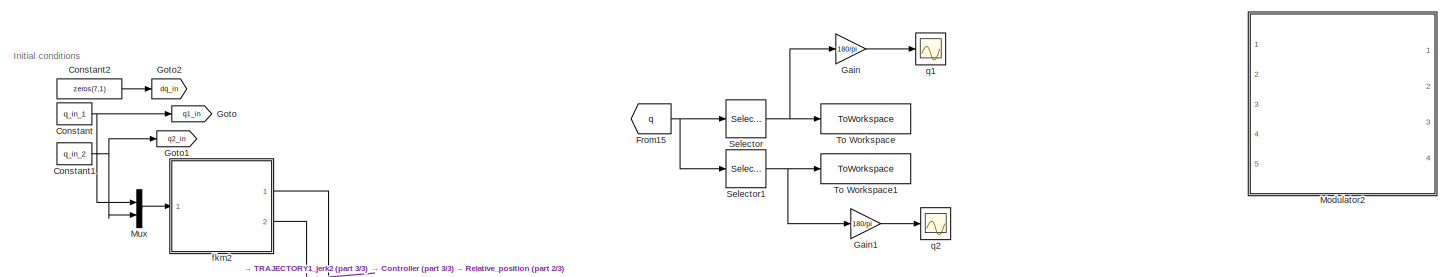
[diagram: root canvas - part 1/3, top center region]
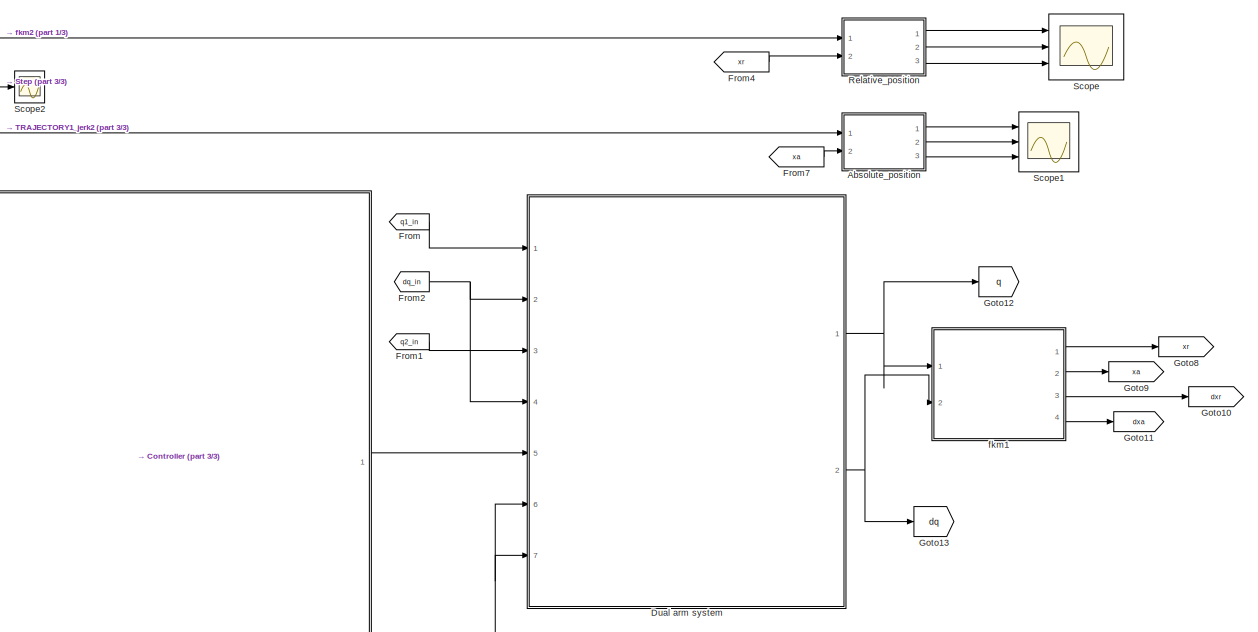
[diagram: root canvas - part 2/3, middle right region]
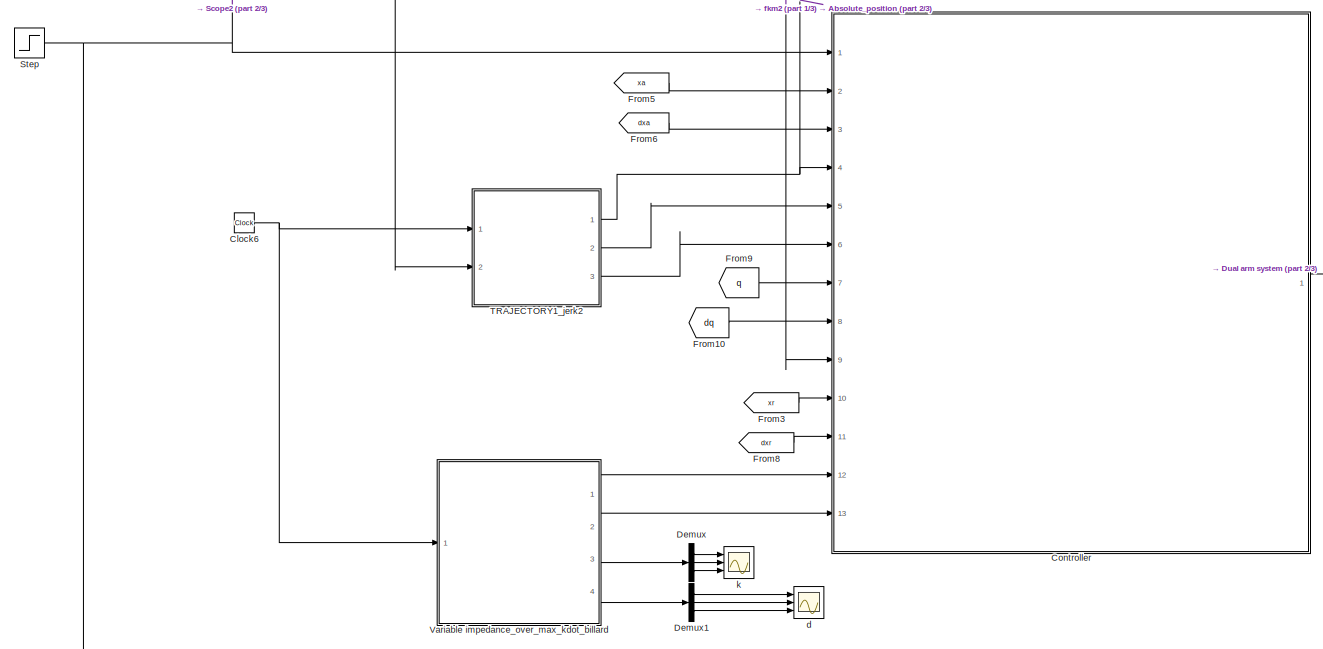
[diagram: root canvas - part 3/3, bottom left region]
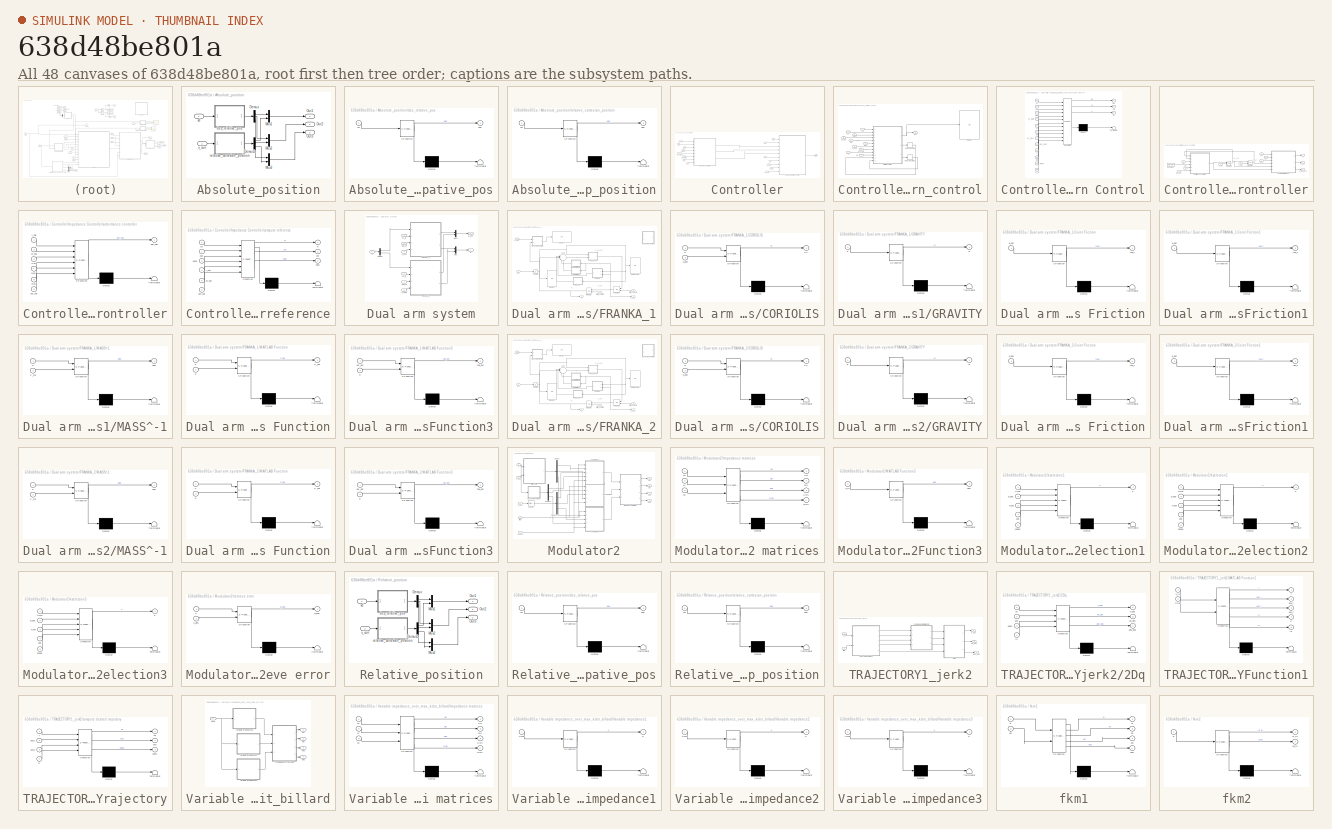
[diagram: thumbnail index - all 48 canvases of the model, root first then tree order]
MODEL slx_638d48be801a
KIND model
CONFIG AbsTol = auto
CONFIG EnableMultiTasking = off
CONFIG FixedStep = 0.01
CONFIG MaxStep = auto
CONFIG MinStep = auto
CONFIG RelTol = 1e-3
CONFIG SampleTimeConstraint = Unconstrained
CONFIG SolverName = FixedStepAuto
CONFIG StartTime = 0.0
CONFIG StopTime = 10
BLOCK [SubSystem] Absolute_position
  Ports = [2, 3]
  RequestExecContextInheritance = off
BLOCK [Demux] Absolute_position/Demux
  Outputs = 3
  Ports = [1, 3]
BLOCK [Demux] Absolute_position/Demux1
  Outputs = 3
  Ports = [1, 3]
BLOCK [Mux] Absolute_position/Mux1
  DisplayOption = bar
  Inputs = 2
  Ports = [2, 1]
BLOCK [Mux] Absolute_position/Mux2
  DisplayOption = bar
  Inputs = 2
  Ports = [2, 1]
BLOCK [Mux] Absolute_position/Mux3
  DisplayOption = bar
  Inputs = 2
  Ports = [2, 1]
BLOCK [Outport] Absolute_position/Out1
BLOCK [Outport] Absolute_position/Out2
  Port = 2
BLOCK [Outport] Absolute_position/Out3
  Port = 3
BLOCK [SubSystem] Absolute_position/des_relative_pos
  ErrorFcn = Stateflow.Translate.translate
  PermitHierarchicalResolution = ExplicitOnly
  Ports = [1, 1]
  RequestExecContextInheritance = off
  SFBlockType = MATLAB Function
  TreatAsAtomicUnit = on
BLOCK [Demux] Absolute_position/des_relative_pos/ Demux 
  Outputs = 1
  Ports = [1, 1]
BLOCK [S-Function] Absolute_position/des_relative_pos/ SFunction 
  EnableBusSupport = on
  FunctionName = sf_sfun
  PortCounts = [1 2]
  Ports = [1, 2]
  SFcnIsStateOwnerBlock = off
  SFunctionDeploymentMode = off
  Tag = Stateflow S-Function 12
BLOCK [Terminator] Absolute_position/des_relative_pos/ Terminator 
BLOCK [Outport] Absolute_position/des_relative_pos/pos
BLOCK [Inport] Absolute_position/des_relative_pos/xd
BLOCK [SubSystem] Absolute_position/relative_cartesian_position
  ErrorFcn = Stateflow.Translate.translate
  PermitHierarchicalResolution = ExplicitOnly
  Ports = [1, 1]
  RequestExecContextInheritance = off
  SFBlockType = MATLAB Function
  TreatAsAtomicUnit = on
BLOCK [Demux] Absolute_position/relative_cartesian_position/ Demux 
  Outputs = 1
  Ports = [1, 1]
BLOCK [S-Function] Absolute_position/relative_cartesian_position/ SFunction 
  EnableBusSupport = on
  FunctionName = sf_sfun
  PortCounts = [1 2]
  Ports = [1, 2]
  SFcnIsStateOwnerBlock = off
  SFunctionDeploymentMode = off
  Tag = Stateflow S-Function 14
BLOCK [Terminator] Absolute_position/relative_cartesian_position/ Terminator 
BLOCK [Outport] Absolute_position/relative_cartesian_position/pos
BLOCK [Inport] Absolute_position/relative_cartesian_position/xd
BLOCK [Inport] Absolute_position/x_curr
  Port = 2
BLOCK [Inport] Absolute_position/xd
BLOCK [Clock] Clock6
BLOCK [Constant] Constant
  Value = q_in_1
BLOCK [Constant] Constant1
  Value = q_in_2
BLOCK [Constant] Constant2
  Value = zeros(7,1)
BLOCK [SubSystem] Controller
  Ports = [13, 1]
  RequestExecContextInheritance = off
BLOCK [Inport] Controller/Bd
  Port = 13
BLOCK [Constant] Controller/Constant3
  Value = dyr_in
BLOCK [Constant] Controller/Constant4
  Value = yr_in
BLOCK [SubSystem] Controller/Full_dual_position_control
  Ports = [10, 1]
  RequestExecContextInheritance = off
BLOCK [Delay] Controller/Full_dual_position_control/Delay One Step
  DelayLength = 1
  InputPortMap = u0
  Ports = [1, 1]
BLOCK [Delay] Controller/Full_dual_position_control/Delay One Step1
  DelayLength = 1
  InputPortMap = u0
  Ports = [1, 1]
BLOCK [Display] Controller/Full_dual_position_control/Display
  Decimation = 1
  Ports = [1]
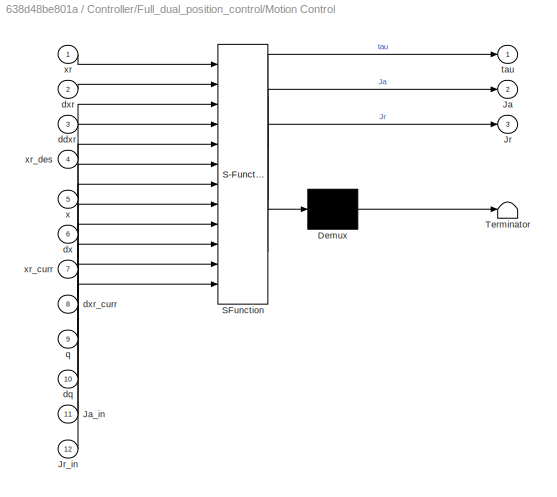
BLOCK [SubSystem] Controller/Full_dual_position_control/Motion Control
  ErrorFcn = Stateflow.Translate.translate
  PermitHierarchicalResolution = ExplicitOnly
  Ports = [12, 3]
  RequestExecContextInheritance = off
  SFBlockType = MATLAB Function
  TreatAsAtomicUnit = on
BLOCK [Demux] Controller/Full_dual_position_control/Motion Control/ Demux 
  Outputs = 1
  Ports = [1, 1]
BLOCK [S-Function] Controller/Full_dual_position_control/Motion Control/ SFunction 
  EnableBusSupport = on
  FunctionName = sf_sfun
  Parameters = Ts,b1,b2,franka_dh_matrix
  PortCounts = [12 4]
  Ports = [12, 4]
  SFcnIsStateOwnerBlock = off
  SFunctionDeploymentMode = off
  Tag = Stateflow S-Function 28
BLOCK [Terminator] Controller/Full_dual_position_control/Motion Control/ Terminator 
BLOCK [Outport] Controller/Full_dual_position_control/Motion Control/Ja
  Port = 2
BLOCK [Inport] Controller/Full_dual_position_control/Motion Control/Ja_in
  Port = 11
BLOCK [Outport] Controller/Full_dual_position_control/Motion Control/Jr
  Port = 3
BLOCK [Inport] Controller/Full_dual_position_control/Motion Control/Jr_in
  Port = 12
BLOCK [Inport] Controller/Full_dual_position_control/Motion Control/ddxr
  Port = 3
BLOCK [Inport] Controller/Full_dual_position_control/Motion Control/dq
  Port = 10
BLOCK [Inport] Controller/Full_dual_position_control/Motion Control/dx
  Port = 6
BLOCK [Inport] Controller/Full_dual_position_control/Motion Control/dxr
  Port = 2
BLOCK [Inport] Controller/Full_dual_position_control/Motion Control/dxr_curr
  Port = 8
BLOCK [Inport] Controller/Full_dual_position_control/Motion Control/q
  Port = 9
BLOCK [Outport] Controller/Full_dual_position_control/Motion Control/tau
BLOCK [Inport] Controller/Full_dual_position_control/Motion Control/x
  Port = 5
BLOCK [Inport] Controller/Full_dual_position_control/Motion Control/xr
BLOCK [Inport] Controller/Full_dual_position_control/Motion Control/xr_curr
  Port = 7
BLOCK [Inport] Controller/Full_dual_position_control/Motion Control/xr_des
  Port = 4
BLOCK [Inport] Controller/Full_dual_position_control/ddxc
  Port = 5
BLOCK [Inport] Controller/Full_dual_position_control/dq
  Port = 7
BLOCK [Inport] Controller/Full_dual_position_control/dxa
  Port = 2
BLOCK [Inport] Controller/Full_dual_position_control/dxc
  Port = 4
BLOCK [Inport] Controller/Full_dual_position_control/dxr_curr
  Port = 10
BLOCK [Inport] Controller/Full_dual_position_control/q
  Port = 6
BLOCK [Outport] Controller/Full_dual_position_control/tau
BLOCK [Inport] Controller/Full_dual_position_control/xa
BLOCK [Inport] Controller/Full_dual_position_control/xc
  Port = 3
BLOCK [Inport] Controller/Full_dual_position_control/xr_curr
  Port = 9
BLOCK [Inport] Controller/Full_dual_position_control/xr_des
  Port = 8
BLOCK [SubSystem] Controller/Impedance Controller
  Ports = [8, 3]
  RequestExecContextInheritance = off
BLOCK [Inport] Controller/Impedance Controller/Bd
  Port = 8
BLOCK [Constant] Controller/Impedance Controller/Constant
  Value = 1.5*eye(6)
BLOCK [Integrator] Controller/Impedance Controller/Integrator
  InitialConditionSource = external
  Ports = [2, 1]
BLOCK [Integrator] Controller/Impedance Controller/Integrator1
  InitialConditionSource = external
  Ports = [2, 1]
BLOCK [Inport] Controller/Impedance Controller/Kd
  Port = 7
BLOCK [Outport] Controller/Impedance Controller/Xr
BLOCK [SubSystem] Controller/Impedance Controller/admittance controller
  ErrorFcn = Stateflow.Translate.translate
  PermitHierarchicalResolution = ExplicitOnly
  Ports = [6, 1]
  RequestExecContextInheritance = off
  SFBlockType = MATLAB Function
  TreatAsAtomicUnit = on
BLOCK [Demux] Controller/Impedance Controller/admittance controller/ Demux 
  Outputs = 1
  Ports = [1, 1]
BLOCK [S-Function] Controller/Impedance Controller/admittance controller/ SFunction 
  EnableBusSupport = on
  FunctionName = sf_sfun
  PortCounts = [6 2]
  Ports = [6, 2]
  SFcnIsStateOwnerBlock = off
  SFunctionDeploymentMode = off
  Tag = Stateflow S-Function 26
BLOCK [Terminator] Controller/Impedance Controller/admittance controller/ Terminator 
BLOCK [Inport] Controller/Impedance Controller/admittance controller/Bd1
  Port = 5
BLOCK [Inport] Controller/Impedance Controller/admittance controller/Kd1
  Port = 3
BLOCK [Inport] Controller/Impedance Controller/admittance controller/Md1
  Port = 4
BLOCK [Outport] Controller/Impedance Controller/admittance controller/ddy_hat
BLOCK [Inport] Controller/Impedance Controller/admittance controller/dy_hat
  Port = 2
BLOCK [Inport] Controller/Impedance Controller/admittance controller/psi_ext
  Port = 6
BLOCK [Inport] Controller/Impedance Controller/admittance controller/y_hat
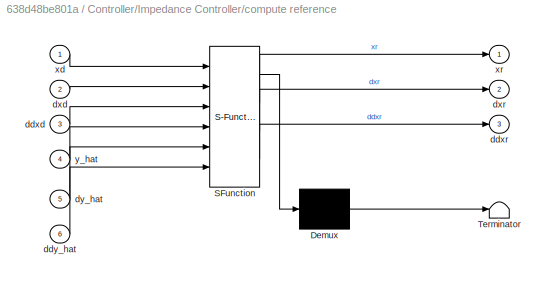
BLOCK [SubSystem] Controller/Impedance Controller/compute reference
  ErrorFcn = Stateflow.Translate.translate
  PermitHierarchicalResolution = ExplicitOnly
  Ports = [6, 3]
  RequestExecContextInheritance = off
  SFBlockType = MATLAB Function
  TreatAsAtomicUnit = on
BLOCK [Demux] Controller/Impedance Controller/compute reference/ Demux 
  Outputs = 1
  Ports = [1, 1]
BLOCK [S-Function] Controller/Impedance Controller/compute reference/ SFunction 
  EnableBusSupport = on
  FunctionName = sf_sfun
  Parameters = C8
  PortCounts = [6 4]
  Ports = [6, 4]
  SFcnIsStateOwnerBlock = off
  SFunctionDeploymentMode = off
  Tag = Stateflow S-Function 27
BLOCK [Terminator] Controller/Impedance Controller/compute reference/ Terminator 
BLOCK [Inport] Controller/Impedance Controller/compute reference/ddxd
  Port = 3
BLOCK [Outport] Controller/Impedance Controller/compute reference/ddxr
  Port = 3
BLOCK [Inport] Controller/Impedance Controller/compute reference/ddy_hat
  Port = 6
BLOCK [Inport] Controller/Impedance Controller/compute reference/dxd
  Port = 2
BLOCK [Outport] Controller/Impedance Controller/compute reference/dxr
  Port = 2
BLOCK [Inport] Controller/Impedance Controller/compute reference/dy_hat
  Port = 5
BLOCK [Inport] Controller/Impedance Controller/compute reference/xd
BLOCK [Outport] Controller/Impedance Controller/compute reference/xr
BLOCK [Inport] Controller/Impedance Controller/compute reference/y_hat
  Port = 4
BLOCK [Inport] Controller/Impedance Controller/ddxd
  Port = 4
BLOCK [Inport] Controller/Impedance Controller/dxd
  Port = 3
BLOCK [Inport] Controller/Impedance Controller/dyr_in
  Port = 6
BLOCK [Inport] Controller/Impedance Controller/psi_ext
BLOCK [Inport] Controller/Impedance Controller/xd
  Port = 2
BLOCK [Outport] Controller/Impedance Controller/xr_dot
  Port = 2
BLOCK [Outport] Controller/Impedance Controller/xr_dot_dot
  Port = 3
BLOCK [Inport] Controller/Impedance Controller/yr_in
  Port = 5
BLOCK [Inport] Controller/Kd
  Port = 12
BLOCK [Inport] Controller/ddxad
  Port = 6
BLOCK [Inport] Controller/dq
  Port = 8
BLOCK [Inport] Controller/dxa
  Port = 3
BLOCK [Inport] Controller/dxad
  Port = 5
BLOCK [Inport] Controller/dxr_curr
  Port = 11
BLOCK [Inport] Controller/psi_ext
BLOCK [Inport] Controller/q
  Port = 7
BLOCK [Outport] Controller/tau
BLOCK [Inport] Controller/xa
  Port = 2
BLOCK [Inport] Controller/xad
  Port = 4
BLOCK [Inport] Controller/xr_curr
  Port = 10
BLOCK [Inport] Controller/xr_des
  NameLocation = left
  Port = 9
BLOCK [Demux] Demux
  Outputs = 3
  Ports = [1, 3]
BLOCK [Demux] Demux1
  Outputs = 3
  Ports = [1, 3]
BLOCK [SubSystem] Dual arm system
  Ports = [7, 2]
  RequestExecContextInheritance = off
BLOCK [Demux] Dual arm system/Demux
  Outputs = 2
  Ports = [1, 2]
BLOCK [SubSystem] Dual arm system/FRANKA_1
  Ports = [4, 2]
  RequestExecContextInheritance = off
BLOCK [SubSystem] Dual arm system/FRANKA_1/CORIOLIS
  ErrorFcn = Stateflow.Translate.translate
  PermitHierarchicalResolution = ExplicitOnly
  Ports = [2, 1]
  RequestExecContextInheritance = off
  SFBlockType = MATLAB Function
  TreatAsAtomicUnit = on
BLOCK [Demux] Dual arm system/FRANKA_1/CORIOLIS/ Demux 
  Outputs = 1
  Ports = [1, 1]
BLOCK [S-Function] Dual arm system/FRANKA_1/CORIOLIS/ SFunction 
  EnableBusSupport = on
  FunctionName = sf_sfun
  PortCounts = [2 2]
  Ports = [2, 2]
  SFcnIsStateOwnerBlock = off
  SFunctionDeploymentMode = off
  Tag = Stateflow S-Function 1
BLOCK [Terminator] Dual arm system/FRANKA_1/CORIOLIS/ Terminator 
BLOCK [Outport] Dual arm system/FRANKA_1/CORIOLIS/Fc
BLOCK [Inport] Dual arm system/FRANKA_1/CORIOLIS/q
BLOCK [Inport] Dual arm system/FRANKA_1/CORIOLIS/q_dot
  Port = 2
BLOCK [Display] Dual arm system/FRANKA_1/Display
  Decimation = 1
  Ports = [1]
BLOCK [Display] Dual arm system/FRANKA_1/Display5
  Decimation = 1
  Ports = [1]
BLOCK [Display] Dual arm system/FRANKA_1/Displayqqq
  Decimation = 1
  Ports = [1]
BLOCK [Inport] Dual arm system/FRANKA_1/F_ext
  Port = 4
BLOCK [SubSystem] Dual arm system/FRANKA_1/GRAVITY
  ErrorFcn = Stateflow.Translate.translate
  PermitHierarchicalResolution = ExplicitOnly
  Ports = [1, 1]
  RequestExecContextInheritance = off
  SFBlockType = MATLAB Function
  TreatAsAtomicUnit = on
BLOCK [Demux] Dual arm system/FRANKA_1/GRAVITY/ Demux 
  Outputs = 1
  Ports = [1, 1]
BLOCK [S-Function] Dual arm system/FRANKA_1/GRAVITY/ SFunction 
  EnableBusSupport = on
  FunctionName = sf_sfun
  PortCounts = [1 2]
  Ports = [1, 2]
  SFcnIsStateOwnerBlock = off
  SFunctionDeploymentMode = off
  Tag = Stateflow S-Function 20
BLOCK [Terminator] Dual arm system/FRANKA_1/GRAVITY/ Terminator 
BLOCK [Outport] Dual arm system/FRANKA_1/GRAVITY/G
BLOCK [Inport] Dual arm system/FRANKA_1/GRAVITY/q
BLOCK [Inport] Dual arm system/FRANKA_1/Initial_Position
  NameLocation = top
  Port = 2
BLOCK [Inport] Dual arm system/FRANKA_1/Initial_Velocity
  Port = 3
BLOCK [Integrator] Dual arm system/FRANKA_1/Integrator
  InitialConditionSource = external
  Ports = [2, 1]
BLOCK [Integrator] Dual arm system/FRANKA_1/Integrator1
  InitialCondition = [0;0]
  InitialConditionSource = external
  Ports = [2, 1]
BLOCK [SubSystem] Dual arm system/FRANKA_1/Joint Friction
  ErrorFcn = Stateflow.Translate.translate
  PermitHierarchicalResolution = ExplicitOnly
  Ports = [1, 1]
  RequestExecContextInheritance = off
  SFBlockType = MATLAB Function
  TreatAsAtomicUnit = on
BLOCK [Demux] Dual arm system/FRANKA_1/Joint Friction/ Demux 
  Outputs = 1
  Ports = [1, 1]
BLOCK [S-Function] Dual arm system/FRANKA_1/Joint Friction/ SFunction 
  EnableBusSupport = on
  FunctionName = sf_sfun
  PortCounts = [1 2]
  Ports = [1, 2]
  SFcnIsStateOwnerBlock = off
  SFunctionDeploymentMode = off
  Tag = Stateflow S-Function 30
BLOCK [Terminator] Dual arm system/FRANKA_1/Joint Friction/ Terminator 
BLOCK [Inport] Dual arm system/FRANKA_1/Joint Friction/q_dot
BLOCK [Outport] Dual arm system/FRANKA_1/Joint Friction/tau_f
BLOCK [SubSystem] Dual arm system/FRANKA_1/Joint Friction1
  Commented = on
  ErrorFcn = Stateflow.Translate.translate
  PermitHierarchicalResolution = ExplicitOnly
  Ports = [1, 1]
  RequestExecContextInheritance = off
  SFBlockType = MATLAB Function
  TreatAsAtomicUnit = on
BLOCK [Demux] Dual arm system/FRANKA_1/Joint Friction1/ Demux 
  Outputs = 1
  Ports = [1, 1]
BLOCK [S-Function] Dual arm system/FRANKA_1/Joint Friction1/ SFunction 
  EnableBusSupport = on
  FunctionName = sf_sfun
  PortCounts = [1 2]
  Ports = [1, 2]
  SFcnIsStateOwnerBlock = off
  SFunctionDeploymentMode = off
  Tag = Stateflow S-Function 31
BLOCK [Terminator] Dual arm system/FRANKA_1/Joint Friction1/ Terminator 
BLOCK [Inport] Dual arm system/FRANKA_1/Joint Friction1/q_dot
BLOCK [Outport] Dual arm system/FRANKA_1/Joint Friction1/tau_f
BLOCK [SubSystem] Dual arm system/FRANKA_1/MASS^-1
  ErrorFcn = Stateflow.Translate.translate
  PermitHierarchicalResolution = ExplicitOnly
  Ports = [2, 1]
  RequestExecContextInheritance = off
  SFBlockType = MATLAB Function
  TreatAsAtomicUnit = on
BLOCK [Demux] Dual arm system/FRANKA_1/MASS^-1/ Demux 
  Outputs = 1
  Ports = [1, 1]
BLOCK [S-Function] Dual arm system/FRANKA_1/MASS^-1/ SFunction 
  EnableBusSupport = on
  FunctionName = sf_sfun
  PortCounts = [2 2]
  Ports = [2, 2]
  SFcnIsStateOwnerBlock = off
  SFunctionDeploymentMode = off
  Tag = Stateflow S-Function 22
BLOCK [Terminator] Dual arm system/FRANKA_1/MASS^-1/ Terminator 
BLOCK [Inport] Dual arm system/FRANKA_1/MASS^-1/F_tot
  Port = 2
BLOCK [Outport] Dual arm system/FRANKA_1/MASS^-1/ddq
BLOCK [Inport] Dual arm system/FRANKA_1/MASS^-1/q
BLOCK [SubSystem] Dual arm system/FRANKA_1/MATLAB Function
  ErrorFcn = Stateflow.Translate.translate
  PermitHierarchicalResolution = ExplicitOnly
  Ports = [2, 1]
  RequestExecContextInheritance = off
  SFBlockType = MATLAB Function
  TreatAsAtomicUnit = on
BLOCK [Demux] Dual arm system/FRANKA_1/MATLAB Function/ Demux 
  Outputs = 1
  Ports = [1, 1]
BLOCK [S-Function] Dual arm system/FRANKA_1/MATLAB Function/ SFunction 
  EnableBusSupport = on
  FunctionName = sf_sfun
  PortCounts = [2 2]
  Ports = [2, 2]
  SFcnIsStateOwnerBlock = off
  SFunctionDeploymentMode = off
  Tag = Stateflow S-Function 25
BLOCK [Terminator] Dual arm system/FRANKA_1/MATLAB Function/ Terminator 
BLOCK [Inport] Dual arm system/FRANKA_1/MATLAB Function/F
BLOCK [Outport] Dual arm system/FRANKA_1/MATLAB Function/F_ext
BLOCK [Inport] Dual arm system/FRANKA_1/MATLAB Function/q
  Port = 2
BLOCK [SubSystem] Dual arm system/FRANKA_1/MATLAB Function3
  Commented = on
  ErrorFcn = Stateflow.Translate.translate
  PermitHierarchicalResolution = ExplicitOnly
  Ports = [2, 1]
  RequestExecContextInheritance = off
  SFBlockType = MATLAB Function
  TreatAsAtomicUnit = on
BLOCK [Demux] Dual arm system/FRANKA_1/MATLAB Function3/ Demux 
  Outputs = 1
  Ports = [1, 1]
BLOCK [S-Function] Dual arm system/FRANKA_1/MATLAB Function3/ SFunction 
  EnableBusSupport = on
  FunctionName = sf_sfun
  Parameters = franka_dh_matrix
  PortCounts = [2 2]
  Ports = [2, 2]
  SFcnIsStateOwnerBlock = off
  SFunctionDeploymentMode = off
  Tag = Stateflow S-Function 24
BLOCK [Terminator] Dual arm system/FRANKA_1/MATLAB Function3/ Terminator 
BLOCK [Inport] Dual arm system/FRANKA_1/MATLAB Function3/psi_ext
BLOCK [Inport] Dual arm system/FRANKA_1/MATLAB Function3/q
  Port = 2
BLOCK [Outport] Dual arm system/FRANKA_1/MATLAB Function3/tau_ext
BLOCK [Saturate] Dual arm system/FRANKA_1/Saturation
  Commented = through
  LowerLimit = -100
  UpperLimit = 100
BLOCK [Sum] Dual arm system/FRANKA_1/Sum
  Inputs = ||+--+-+
  Ports = [6, 1]
BLOCK [Outport] Dual arm system/FRANKA_1/q
  Port = 2
BLOCK [Outport] Dual arm system/FRANKA_1/q_dot
BLOCK [Inport] Dual arm system/FRANKA_1/tau
BLOCK [SubSystem] Dual arm system/FRANKA_2
  Ports = [4, 2]
  RequestExecContextInheritance = off
BLOCK [SubSystem] Dual arm system/FRANKA_2/CORIOLIS
  ErrorFcn = Stateflow.Translate.translate
  PermitHierarchicalResolution = ExplicitOnly
  Ports = [2, 1]
  RequestExecContextInheritance = off
  SFBlockType = MATLAB Function
  TreatAsAtomicUnit = on
BLOCK [Demux] Dual arm system/FRANKA_2/CORIOLIS/ Demux 
  Outputs = 1
  Ports = [1, 1]
BLOCK [S-Function] Dual arm system/FRANKA_2/CORIOLIS/ SFunction 
  EnableBusSupport = on
  FunctionName = sf_sfun
  PortCounts = [2 2]
  Ports = [2, 2]
  SFcnIsStateOwnerBlock = off
  SFunctionDeploymentMode = off
  Tag = Stateflow S-Function 2
BLOCK [Terminator] Dual arm system/FRANKA_2/CORIOLIS/ Terminator 
BLOCK [Outport] Dual arm system/FRANKA_2/CORIOLIS/Fc
BLOCK [Inport] Dual arm system/FRANKA_2/CORIOLIS/q
BLOCK [Inport] Dual arm system/FRANKA_2/CORIOLIS/q_dot
  Port = 2
BLOCK [Display] Dual arm system/FRANKA_2/Display
  Decimation = 1
  Ports = [1]
BLOCK [Display] Dual arm system/FRANKA_2/Display5
  Decimation = 1
  Ports = [1]
BLOCK [Display] Dual arm system/FRANKA_2/Displayqqq
  Decimation = 1
  Ports = [1]
BLOCK [Inport] Dual arm system/FRANKA_2/F_ext
  Port = 4
BLOCK [SubSystem] Dual arm system/FRANKA_2/GRAVITY
  ErrorFcn = Stateflow.Translate.translate
  PermitHierarchicalResolution = ExplicitOnly
  Ports = [1, 1]
  RequestExecContextInheritance = off
  SFBlockType = MATLAB Function
  TreatAsAtomicUnit = on
BLOCK [Demux] Dual arm system/FRANKA_2/GRAVITY/ Demux 
  Outputs = 1
  Ports = [1, 1]
BLOCK [S-Function] Dual arm system/FRANKA_2/GRAVITY/ SFunction 
  EnableBusSupport = on
  FunctionName = sf_sfun
  PortCounts = [1 2]
  Ports = [1, 2]
  SFcnIsStateOwnerBlock = off
  SFunctionDeploymentMode = off
  Tag = Stateflow S-Function 3
BLOCK [Terminator] Dual arm system/FRANKA_2/GRAVITY/ Terminator 
BLOCK [Outport] Dual arm system/FRANKA_2/GRAVITY/G
BLOCK [Inport] Dual arm system/FRANKA_2/GRAVITY/q
BLOCK [Inport] Dual arm system/FRANKA_2/Initial_Position
  NameLocation = top
  Port = 2
BLOCK [Inport] Dual arm system/FRANKA_2/Initial_Velocity
  Port = 3
BLOCK [Integrator] Dual arm system/FRANKA_2/Integrator
  InitialConditionSource = external
  Ports = [2, 1]
BLOCK [Integrator] Dual arm system/FRANKA_2/Integrator1
  InitialCondition = [0;0]
  InitialConditionSource = external
  Ports = [2, 1]
BLOCK [SubSystem] Dual arm system/FRANKA_2/Joint Friction
  ErrorFcn = Stateflow.Translate.translate
  PermitHierarchicalResolution = ExplicitOnly
  Ports = [1, 1]
  RequestExecContextInheritance = off
  SFBlockType = MATLAB Function
  TreatAsAtomicUnit = on
BLOCK [Demux] Dual arm system/FRANKA_2/Joint Friction/ Demux 
  Outputs = 1
  Ports = [1, 1]
BLOCK [S-Function] Dual arm system/FRANKA_2/Joint Friction/ SFunction 
  EnableBusSupport = on
  FunctionName = sf_sfun
  PortCounts = [1 2]
  Ports = [1, 2]
  SFcnIsStateOwnerBlock = off
  SFunctionDeploymentMode = off
  Tag = Stateflow S-Function 4
BLOCK [Terminator] Dual arm system/FRANKA_2/Joint Friction/ Terminator 
BLOCK [Inport] Dual arm system/FRANKA_2/Joint Friction/q_dot
BLOCK [Outport] Dual arm system/FRANKA_2/Joint Friction/tau_f
BLOCK [SubSystem] Dual arm system/FRANKA_2/Joint Friction1
  Commented = on
  ErrorFcn = Stateflow.Translate.translate
  PermitHierarchicalResolution = ExplicitOnly
  Ports = [1, 1]
  RequestExecContextInheritance = off
  SFBlockType = MATLAB Function
  TreatAsAtomicUnit = on
BLOCK [Demux] Dual arm system/FRANKA_2/Joint Friction1/ Demux 
  Outputs = 1
  Ports = [1, 1]
BLOCK [S-Function] Dual arm system/FRANKA_2/Joint Friction1/ SFunction 
  EnableBusSupport = on
  FunctionName = sf_sfun
  PortCounts = [1 2]
  Ports = [1, 2]
  SFcnIsStateOwnerBlock = off
  SFunctionDeploymentMode = off
  Tag = Stateflow S-Function 5
BLOCK [Terminator] Dual arm system/FRANKA_2/Joint Friction1/ Terminator 
BLOCK [Inport] Dual arm system/FRANKA_2/Joint Friction1/q_dot
BLOCK [Outport] Dual arm system/FRANKA_2/Joint Friction1/tau_f
BLOCK [SubSystem] Dual arm system/FRANKA_2/MASS^-1
  ErrorFcn = Stateflow.Translate.translate
  PermitHierarchicalResolution = ExplicitOnly
  Ports = [2, 1]
  RequestExecContextInheritance = off
  SFBlockType = MATLAB Function
  TreatAsAtomicUnit = on
BLOCK [Demux] Dual arm system/FRANKA_2/MASS^-1/ Demux 
  Outputs = 1
  Ports = [1, 1]
BLOCK [S-Function] Dual arm system/FRANKA_2/MASS^-1/ SFunction 
  EnableBusSupport = on
  FunctionName = sf_sfun
  PortCounts = [2 2]
  Ports = [2, 2]
  SFcnIsStateOwnerBlock = off
  SFunctionDeploymentMode = off
  Tag = Stateflow S-Function 6
BLOCK [Terminator] Dual arm system/FRANKA_2/MASS^-1/ Terminator 
BLOCK [Inport] Dual arm system/FRANKA_2/MASS^-1/F_tot
  Port = 2
BLOCK [Outport] Dual arm system/FRANKA_2/MASS^-1/ddq
BLOCK [Inport] Dual arm system/FRANKA_2/MASS^-1/q
BLOCK [SubSystem] Dual arm system/FRANKA_2/MATLAB Function
  ErrorFcn = Stateflow.Translate.translate
  PermitHierarchicalResolution = ExplicitOnly
  Ports = [2, 1]
  RequestExecContextInheritance = off
  SFBlockType = MATLAB Function
  TreatAsAtomicUnit = on
BLOCK [Demux] Dual arm system/FRANKA_2/MATLAB Function/ Demux 
  Outputs = 1
  Ports = [1, 1]
BLOCK [S-Function] Dual arm system/FRANKA_2/MATLAB Function/ SFunction 
  EnableBusSupport = on
  FunctionName = sf_sfun
  PortCounts = [2 2]
  Ports = [2, 2]
  SFcnIsStateOwnerBlock = off
  SFunctionDeploymentMode = off
  Tag = Stateflow S-Function 7
BLOCK [Terminator] Dual arm system/FRANKA_2/MATLAB Function/ Terminator 
BLOCK [Inport] Dual arm system/FRANKA_2/MATLAB Function/F
BLOCK [Outport] Dual arm system/FRANKA_2/MATLAB Function/F_ext
BLOCK [Inport] Dual arm system/FRANKA_2/MATLAB Function/q
  Port = 2
BLOCK [SubSystem] Dual arm system/FRANKA_2/MATLAB Function3
  Commented = on
  ErrorFcn = Stateflow.Translate.translate
  PermitHierarchicalResolution = ExplicitOnly
  Ports = [2, 1]
  RequestExecContextInheritance = off
  SFBlockType = MATLAB Function
  TreatAsAtomicUnit = on
BLOCK [Demux] Dual arm system/FRANKA_2/MATLAB Function3/ Demux 
  Outputs = 1
  Ports = [1, 1]
BLOCK [S-Function] Dual arm system/FRANKA_2/MATLAB Function3/ SFunction 
  EnableBusSupport = on
  FunctionName = sf_sfun
  Parameters = franka_dh_matrix
  PortCounts = [2 2]
  Ports = [2, 2]
  SFcnIsStateOwnerBlock = off
  SFunctionDeploymentMode = off
  Tag = Stateflow S-Function 8
BLOCK [Terminator] Dual arm system/FRANKA_2/MATLAB Function3/ Terminator 
BLOCK [Inport] Dual arm system/FRANKA_2/MATLAB Function3/psi_ext
BLOCK [Inport] Dual arm system/FRANKA_2/MATLAB Function3/q
  Port = 2
BLOCK [Outport] Dual arm system/FRANKA_2/MATLAB Function3/tau_ext
BLOCK [Saturate] Dual arm system/FRANKA_2/Saturation
  Commented = through
  LowerLimit = -100
  UpperLimit = 100
BLOCK [Sum] Dual arm system/FRANKA_2/Sum
  Inputs = ||+--+-+
  Ports = [6, 1]
BLOCK [Outport] Dual arm system/FRANKA_2/q
  Port = 2
BLOCK [Outport] Dual arm system/FRANKA_2/q_dot
BLOCK [Inport] Dual arm system/FRANKA_2/tau
BLOCK [Inport] Dual arm system/F_ex1
  Port = 7
BLOCK [Inport] Dual arm system/F_ext2
  Port = 6
BLOCK [Mux] Dual arm system/Mux
  DisplayOption = bar
  Inputs = 2
  Ports = [2, 1]
BLOCK [Mux] Dual arm system/Mux1
  DisplayOption = bar
  Inputs = 2
  Ports = [2, 1]
BLOCK [Inport] Dual arm system/dq1_in
  Port = 2
BLOCK [Inport] Dual arm system/dq2_in
  Port = 4
BLOCK [Outport] Dual arm system/q
BLOCK [Inport] Dual arm system/q1_in
BLOCK [Inport] Dual arm system/q2_in
  Port = 3
BLOCK [Outport] Dual arm system/q_dot
  Port = 2
BLOCK [Inport] Dual arm system/u
  Port = 5
BLOCK [From] From
  GotoTag = q1_in
BLOCK [From] From1
  GotoTag = q2_in
BLOCK [From] From10
  GotoTag = dq
BLOCK [From] From15
  GotoTag = q
BLOCK [From] From2
  GotoTag = dq_in
BLOCK [From] From3
  GotoTag = xr
BLOCK [From] From4
  GotoTag = xr
BLOCK [From] From5
  GotoTag = xa
BLOCK [From] From6
  GotoTag = dxa
BLOCK [From] From7
  GotoTag = xa
BLOCK [From] From8
  GotoTag = dxr
BLOCK [From] From9
  GotoTag = q
BLOCK [Gain] Gain
  Gain = 180/pi
BLOCK [Gain] Gain1
  Gain = 180/pi
BLOCK [Goto] Goto
  GotoTag = q1_in
BLOCK [Goto] Goto1
  GotoTag = q2_in
BLOCK [Goto] Goto10
  GotoTag = dxr
BLOCK [Goto] Goto11
  GotoTag = dxa
BLOCK [Goto] Goto12
  GotoTag = q
BLOCK [Goto] Goto13
  GotoTag = dq
BLOCK [Goto] Goto2
  GotoTag = dq_in
BLOCK [Goto] Goto8
  GotoTag = xr
BLOCK [Goto] Goto9
  GotoTag = xa
BLOCK [SubSystem] Modulator2
  Commented = on
  Ports = [5, 4]
  RequestExecContextInheritance = off
BLOCK [Outport] Modulator2/Bd
  Port = 4
BLOCK [Demux] Modulator2/Demux
  Outputs = 3
  Ports = [1, 3]
BLOCK [Demux] Modulator2/Demux1
  Outputs = 3
  Ports = [1, 3]
BLOCK [Demux] Modulator2/Demux2
  Outputs = 3
  Ports = [1, 3]
BLOCK [Outport] Modulator2/Dvis
BLOCK [Inport] Modulator2/F_ext
  Port = 5
BLOCK [SubSystem] Modulator2/Impedance matrices
  ErrorFcn = Stateflow.Translate.translate
  PermitHierarchicalResolution = ExplicitOnly
  Ports = [3, 4]
  RequestExecContextInheritance = off
  SFBlockType = MATLAB Function
  TreatAsAtomicUnit = on
BLOCK [Demux] Modulator2/Impedance matrices/ Demux 
  Outputs = 1
  Ports = [1, 1]
BLOCK [S-Function] Modulator2/Impedance matrices/ SFunction 
  EnableBusSupport = on
  FunctionName = sf_sfun
  Parameters = mass
  PortCounts = [3 5]
  Ports = [3, 5]
  SFcnIsStateOwnerBlock = off
  SFunctionDeploymentMode = off
  Tag = Stateflow S-Function 15
BLOCK [Terminator] Modulator2/Impedance matrices/ Terminator 
BLOCK [Outport] Modulator2/Impedance matrices/Bd
  Port = 2
BLOCK [Outport] Modulator2/Impedance matrices/Dvis
  Port = 4
BLOCK [Outport] Modulator2/Impedance matrices/Kd
BLOCK [Outport] Modulator2/Impedance matrices/Kvis
  Port = 3
BLOCK [Inport] Modulator2/Impedance matrices/kx
BLOCK [Inport] Modulator2/Impedance matrices/ky
  Port = 2
BLOCK [Inport] Modulator2/Impedance matrices/kz
  Port = 3
BLOCK [Outport] Modulator2/Kd
  Port = 3
BLOCK [Outport] Modulator2/Kvis
  Port = 2
BLOCK [SubSystem] Modulator2/MATLAB Function3
  ErrorFcn = Stateflow.Translate.translate
  PermitHierarchicalResolution = ExplicitOnly
  Ports = [1, 1]
  RequestExecContextInheritance = off
  SFBlockType = MATLAB Function
  TreatAsAtomicUnit = on
BLOCK [Demux] Modulator2/MATLAB Function3/ Demux 
  Outputs = 1
  Ports = [1, 1]
BLOCK [S-Function] Modulator2/MATLAB Function3/ SFunction 
  EnableBusSupport = on
  FunctionName = sf_sfun
  PortCounts = [1 2]
  Ports = [1, 2]
  SFcnIsStateOwnerBlock = off
  SFunctionDeploymentMode = off
  Tag = Stateflow S-Function 33
BLOCK [Terminator] Modulator2/MATLAB Function3/ Terminator 
BLOCK [Outport] Modulator2/MATLAB Function3/pos
BLOCK [Inport] Modulator2/MATLAB Function3/x_in
BLOCK [Selector] Modulator2/Selector
  IndexOptions = Index vector (dialog)
  Indices = [1 2 3]
  InputPortWidth = 6
  OutputSizes = 1
  Ports = [1, 1]
BLOCK [SubSystem] Modulator2/k selection1
  ErrorFcn = Stateflow.Translate.translate
  PermitHierarchicalResolution = ExplicitOnly
  Ports = [5, 1]
  RequestExecContextInheritance = off
  SFBlockType = MATLAB Function
  TreatAsAtomicUnit = on
BLOCK [Demux] Modulator2/k selection1/ Demux 
  Outputs = 1
  Ports = [1, 1]
BLOCK [S-Function] Modulator2/k selection1/ SFunction 
  EnableBusSupport = on
  FunctionName = sf_sfun
  Parameters = F_int_max,F_max,a0,berta,csi,inc,k_default,mass
  PortCounts = [5 2]
  Ports = [5, 2]
  SFcnIsStateOwnerBlock = off
  SFunctionDeploymentMode = off
  Tag = Stateflow S-Function 35
BLOCK [Terminator] Modulator2/k selection1/ Terminator 
BLOCK [Inport] Modulator2/k selection1/F_ext
  Port = 3
BLOCK [Inport] Modulator2/k selection1/e_pos
  Port = 2
BLOCK [Outport] Modulator2/k selection1/k
BLOCK [Inport] Modulator2/k selection1/phase
  Port = 5
BLOCK [Inport] Modulator2/k selection1/pos
  Port = 4
BLOCK [Inport] Modulator2/k selection1/time
BLOCK [SubSystem] Modulator2/k selection2
  ErrorFcn = Stateflow.Translate.translate
  PermitHierarchicalResolution = ExplicitOnly
  Ports = [5, 1]
  RequestExecContextInheritance = off
  SFBlockType = MATLAB Function
  TreatAsAtomicUnit = on
BLOCK [Demux] Modulator2/k selection2/ Demux 
  Outputs = 1
  Ports = [1, 1]
BLOCK [S-Function] Modulator2/k selection2/ SFunction 
  EnableBusSupport = on
  FunctionName = sf_sfun
  Parameters = F_int_max,F_max,a0,berta,csi,inc,k_default,mass
  PortCounts = [5 2]
  Ports = [5, 2]
  SFcnIsStateOwnerBlock = off
  SFunctionDeploymentMode = off
  Tag = Stateflow S-Function 36
BLOCK [Terminator] Modulator2/k selection2/ Terminator 
BLOCK [Inport] Modulator2/k selection2/F_ext
  Port = 3
BLOCK [Inport] Modulator2/k selection2/e_pos
  Port = 2
BLOCK [Outport] Modulator2/k selection2/k
BLOCK [Inport] Modulator2/k selection2/phase
  Port = 5
BLOCK [Inport] Modulator2/k selection2/pos
  Port = 4
BLOCK [Inport] Modulator2/k selection2/time
BLOCK [SubSystem] Modulator2/k selection3
  ErrorFcn = Stateflow.Translate.translate
  PermitHierarchicalResolution = ExplicitOnly
  Ports = [5, 1]
  RequestExecContextInheritance = off
  SFBlockType = MATLAB Function
  TreatAsAtomicUnit = on
BLOCK [Demux] Modulator2/k selection3/ Demux 
  Outputs = 1
  Ports = [1, 1]
BLOCK [S-Function] Modulator2/k selection3/ SFunction 
  EnableBusSupport = on
  FunctionName = sf_sfun
  Parameters = F_int_max,F_max,a0,berta,csi,inc,k_default,mass
  PortCounts = [5 2]
  Ports = [5, 2]
  SFcnIsStateOwnerBlock = off
  SFunctionDeploymentMode = off
  Tag = Stateflow S-Function 37
BLOCK [Terminator] Modulator2/k selection3/ Terminator 
BLOCK [Inport] Modulator2/k selection3/F_ext
  Port = 3
BLOCK [Inport] Modulator2/k selection3/e_pos
  Port = 2
BLOCK [Outport] Modulator2/k selection3/k
BLOCK [Inport] Modulator2/k selection3/phase
  Port = 5
BLOCK [Inport] Modulator2/k selection3/pos
  Port = 4
BLOCK [Inport] Modulator2/k selection3/time
BLOCK [Inport] Modulator2/phase
  Port = 3
BLOCK [SubSystem] Modulator2/retrieve error
  ErrorFcn = Stateflow.Translate.translate
  PermitHierarchicalResolution = ExplicitOnly
  Ports = [2, 1]
  RequestExecContextInheritance = off
  SFBlockType = MATLAB Function
  TreatAsAtomicUnit = on
BLOCK [Demux] Modulator2/retrieve error/ Demux 
  Outputs = 1
  Ports = [1, 1]
BLOCK [S-Function] Modulator2/retrieve error/ SFunction 
  EnableBusSupport = on
  FunctionName = sf_sfun
  PortCounts = [2 2]
  Ports = [2, 2]
  SFcnIsStateOwnerBlock = off
  SFunctionDeploymentMode = off
  Tag = Stateflow S-Function 38
BLOCK [Terminator] Modulator2/retrieve error/ Terminator 
BLOCK [Outport] Modulator2/retrieve error/e_pos
BLOCK [Inport] Modulator2/retrieve error/x
BLOCK [Inport] Modulator2/retrieve error/x_des
  Port = 2
BLOCK [Inport] Modulator2/time
  Port = 4
BLOCK [Inport] Modulator2/x
BLOCK [Inport] Modulator2/x_des
  Port = 2
BLOCK [Mux] Mux
  DisplayOption = bar
  Inputs = 2
  Ports = [2, 1]
BLOCK [SubSystem] Relative_position
  Ports = [2, 3]
  RequestExecContextInheritance = off
BLOCK [Demux] Relative_position/Demux
  Outputs = 3
  Ports = [1, 3]
BLOCK [Demux] Relative_position/Demux1
  Outputs = 3
  Ports = [1, 3]
BLOCK [Mux] Relative_position/Mux1
  DisplayOption = bar
  Inputs = 2
  Ports = [2, 1]
BLOCK [Mux] Relative_position/Mux2
  DisplayOption = bar
  Inputs = 2
  Ports = [2, 1]
BLOCK [Mux] Relative_position/Mux3
  DisplayOption = bar
  Inputs = 2
  Ports = [2, 1]
BLOCK [Outport] Relative_position/Out1
BLOCK [Outport] Relative_position/Out2
  Port = 2
BLOCK [Outport] Relative_position/Out3
  Port = 3
BLOCK [SubSystem] Relative_position/des_relative_pos
  ErrorFcn = Stateflow.Translate.translate
  PermitHierarchicalResolution = ExplicitOnly
  Ports = [1, 1]
  RequestExecContextInheritance = off
  SFBlockType = MATLAB Function
  TreatAsAtomicUnit = on
BLOCK [Demux] Relative_position/des_relative_pos/ Demux 
  Outputs = 1
  Ports = [1, 1]
BLOCK [S-Function] Relative_position/des_relative_pos/ SFunction 
  EnableBusSupport = on
  FunctionName = sf_sfun
  PortCounts = [1 2]
  Ports = [1, 2]
  SFcnIsStateOwnerBlock = off
  SFunctionDeploymentMode = off
  Tag = Stateflow S-Function 11
BLOCK [Terminator] Relative_position/des_relative_pos/ Terminator 
BLOCK [Outport] Relative_position/des_relative_pos/pos
BLOCK [Inport] Relative_position/des_relative_pos/xd
BLOCK [SubSystem] Relative_position/relative_cartesian_position
  ErrorFcn = Stateflow.Translate.translate
  PermitHierarchicalResolution = ExplicitOnly
  Ports = [1, 1]
  RequestExecContextInheritance = off
  SFBlockType = MATLAB Function
  TreatAsAtomicUnit = on
BLOCK [Demux] Relative_position/relative_cartesian_position/ Demux 
  Outputs = 1
  Ports = [1, 1]
BLOCK [S-Function] Relative_position/relative_cartesian_position/ SFunction 
  EnableBusSupport = on
  FunctionName = sf_sfun
  PortCounts = [1 2]
  Ports = [1, 2]
  SFcnIsStateOwnerBlock = off
  SFunctionDeploymentMode = off
  Tag = Stateflow S-Function 13
BLOCK [Terminator] Relative_position/relative_cartesian_position/ Terminator 
BLOCK [Outport] Relative_position/relative_cartesian_position/pos
BLOCK [Inport] Relative_position/relative_cartesian_position/xd
BLOCK [Inport] Relative_position/x_curr
  Port = 2
BLOCK [Inport] Relative_position/xd
BLOCK [Scope] Scope
  Floating = off
  NumInputPorts = 3
  Ports = [3]
  ScopeSpecificationString = Simulink.scopes.TimeScopeBlockCfg('CurrentConfiguration', extmgr.ConfigurationSet(extmgr.Configuration('Core','General UI',true),extmgr.Configuration('Core','Source UI',true),extmgr.Configuration('Sources','WiredSimulink',true,'DataLoggingVariableName','ScopeData1'),extmgr.Configuration('Visuals','Time Domain',true,'SerializedDisplays',{struct('MinYLimReal','-0.00059','MaxYLimReal','0.00286','YLab...<+3909ch>
BLOCK [Scope] Scope1
  Floating = off
  NumInputPorts = 3
  Ports = [3]
  ScopeSpecificationString = Simulink.scopes.TimeScopeBlockCfg('CurrentConfiguration', extmgr.ConfigurationSet(extmgr.Configuration('Core','General UI',true),extmgr.Configuration('Core','Source UI',true),extmgr.Configuration('Sources','WiredSimulink',true,'DataLoggingVariableName','ScopeData1'),extmgr.Configuration('Visuals','Time Domain',true,'SerializedDisplays',{struct('MinYLimReal','-0.3129','MaxYLimReal','-0.31099','YLab...<+3931ch>
BLOCK [Scope] Scope2
  Floating = off
  NumInputPorts = 1
  Ports = [1]
  ScopeSpecificationString = Simulink.scopes.TimeScopeBlockCfg('CurrentConfiguration', extmgr.ConfigurationSet(extmgr.Configuration('Core','General UI',true),extmgr.Configuration('Core','Source UI',true),extmgr.Configuration('Sources','WiredSimulink',true,'DataLoggingVariableName','ScopeData7'),extmgr.Configuration('Visuals','Time Domain',true,'SerializedDisplays',{struct('MinYLimReal','-1.125','MaxYLimReal','0.125','YLabelRe...<+1642ch>
BLOCK [Selector] Selector
  IndexOptions = Index vector (dialog)
  Indices = [1 2 3 4 5 6 7]
  InputPortWidth = 14
  OutputSizes = 1
  Ports = [1, 1]
BLOCK [Selector] Selector1
  IndexOptions = Index vector (dialog)
  Indices = [8 9 10 11 12 13 14]
  InputPortWidth = 14
  OutputSizes = 1
  Ports = [1, 1]
BLOCK [Step] Step
  After = [0;0;-1;0;0;0]*0
  SampleTime = 0
BLOCK [SubSystem] TRAJECTORY1_jerk2
  Ports = [2, 3]
  RequestExecContextInheritance = off
BLOCK [SubSystem] TRAJECTORY1_jerk2/2Dq
  ErrorFcn = Stateflow.Translate.translate
  PermitHierarchicalResolution = ExplicitOnly
  Ports = [4, 3]
  RequestExecContextInheritance = off
  SFBlockType = MATLAB Function
  TreatAsAtomicUnit = on
BLOCK [Demux] TRAJECTORY1_jerk2/2Dq/ Demux 
  Outputs = 1
  Ports = [1, 1]
BLOCK [S-Function] TRAJECTORY1_jerk2/2Dq/ SFunction 
  EnableBusSupport = on
  FunctionName = sf_sfun
  PortCounts = [4 4]
  Ports = [4, 4]
  SFcnIsStateOwnerBlock = off
  SFunctionDeploymentMode = off
  Tag = Stateflow S-Function 42
BLOCK [Terminator] TRAJECTORY1_jerk2/2Dq/ Terminator 
BLOCK [Outport] TRAJECTORY1_jerk2/2Dq/ddx_des
  Port = 3
BLOCK [Inport] TRAJECTORY1_jerk2/2Dq/ddxd
  Port = 3
BLOCK [Outport] TRAJECTORY1_jerk2/2Dq/dx_des
  Port = 2
BLOCK [Inport] TRAJECTORY1_jerk2/2Dq/dxd
  Port = 2
BLOCK [Inport] TRAJECTORY1_jerk2/2Dq/r0
  Port = 4
BLOCK [Outport] TRAJECTORY1_jerk2/2Dq/x_des
BLOCK [Inport] TRAJECTORY1_jerk2/2Dq/xd
BLOCK [SubSystem] TRAJECTORY1_jerk2/MATLAB Function1
  ErrorFcn = Stateflow.Translate.translate
  PermitHierarchicalResolution = ExplicitOnly
  Ports = [2, 5]
  RequestExecContextInheritance = off
  SFBlockType = MATLAB Function
  TreatAsAtomicUnit = on
BLOCK [Demux] TRAJECTORY1_jerk2/MATLAB Function1/ Demux 
  Outputs = 1
  Ports = [1, 1]
BLOCK [S-Function] TRAJECTORY1_jerk2/MATLAB Function1/ SFunction 
  EnableBusSupport = on
  FunctionName = sf_sfun
  PortCounts = [2 6]
  Ports = [2, 6]
  SFcnIsStateOwnerBlock = off
  SFunctionDeploymentMode = off
  Tag = Stateflow S-Function 43
BLOCK [Terminator] TRAJECTORY1_jerk2/MATLAB Function1/ Terminator 
BLOCK [Outport] TRAJECTORY1_jerk2/MATLAB Function1/pos_f
  Port = 3
BLOCK [Outport] TRAJECTORY1_jerk2/MATLAB Function1/pos_i
  Port = 2
BLOCK [Outport] TRAJECTORY1_jerk2/MATLAB Function1/r0
  Port = 5
BLOCK [Outport] TRAJECTORY1_jerk2/MATLAB Function1/t
BLOCK [Outport] TRAJECTORY1_jerk2/MATLAB Function1/tf
  Port = 4
BLOCK [Inport] TRAJECTORY1_jerk2/MATLAB Function1/time
  Port = 2
BLOCK [Inport] TRAJECTORY1_jerk2/MATLAB Function1/x_in
BLOCK [SubSystem] TRAJECTORY1_jerk2/compute desired trajectory
  ErrorFcn = Stateflow.Translate.translate
  PermitHierarchicalResolution = ExplicitOnly
  Ports = [4, 3]
  RequestExecContextInheritance = off
  SFBlockType = MATLAB Function
  TreatAsAtomicUnit = on
BLOCK [Demux] TRAJECTORY1_jerk2/compute desired trajectory/ Demux 
  Outputs = 1
  Ports = [1, 1]
BLOCK [S-Function] TRAJECTORY1_jerk2/compute desired trajectory/ SFunction 
  EnableBusSupport = on
  FunctionName = sf_sfun
  PortCounts = [4 4]
  Ports = [4, 4]
  SFcnIsStateOwnerBlock = off
  SFunctionDeploymentMode = off
  Tag = Stateflow S-Function 44
BLOCK [Terminator] TRAJECTORY1_jerk2/compute desired trajectory/ Terminator 
BLOCK [Outport] TRAJECTORY1_jerk2/compute desired trajectory/ddxd
  Port = 3
BLOCK [Outport] TRAJECTORY1_jerk2/compute desired trajectory/dxd
  Port = 2
BLOCK [Inport] TRAJECTORY1_jerk2/compute desired trajectory/pos_f
  Port = 3
BLOCK [Inport] TRAJECTORY1_jerk2/compute desired trajectory/pos_i
  Port = 2
BLOCK [Inport] TRAJECTORY1_jerk2/compute desired trajectory/t
BLOCK [Inport] TRAJECTORY1_jerk2/compute desired trajectory/tf
  Port = 4
BLOCK [Outport] TRAJECTORY1_jerk2/compute desired trajectory/xd
BLOCK [Outport] TRAJECTORY1_jerk2/ddx_des
  Port = 3
BLOCK [Outport] TRAJECTORY1_jerk2/dx_des
  Port = 2
BLOCK [Inport] TRAJECTORY1_jerk2/time
BLOCK [Outport] TRAJECTORY1_jerk2/x_des
BLOCK [Inport] TRAJECTORY1_jerk2/x_in
  Port = 2
BLOCK [ToWorkspace] To Workspace
  FixptAsFi = on
  MaxDataPoints = inf
  Ports = [1]
  SampleTime = -1
  SaveFormat = Timeseries
  VariableName = q1
BLOCK [ToWorkspace] To Workspace1
  FixptAsFi = on
  MaxDataPoints = inf
  Ports = [1]
  SampleTime = -1
  SaveFormat = Timeseries
  VariableName = q2
BLOCK [SubSystem] Variable impedance_over_max_kdot_billard
  Ports = [1, 4]
  RequestExecContextInheritance = off
BLOCK [Outport] Variable impedance_over_max_kdot_billard/Bd
  Port = 2
BLOCK [Outport] Variable impedance_over_max_kdot_billard/Dvis
  Port = 4
BLOCK [SubSystem] Variable impedance_over_max_kdot_billard/Impedance matrices
  ErrorFcn = Stateflow.Translate.translate
  PermitHierarchicalResolution = ExplicitOnly
  Ports = [3, 4]
  RequestExecContextInheritance = off
  SFBlockType = MATLAB Function
  TreatAsAtomicUnit = on
BLOCK [Demux] Variable impedance_over_max_kdot_billard/Impedance matrices/ Demux 
  Outputs = 1
  Ports = [1, 1]
BLOCK [S-Function] Variable impedance_over_max_kdot_billard/Impedance matrices/ SFunction 
  EnableBusSupport = on
  FunctionName = sf_sfun
  PortCounts = [3 5]
  Ports = [3, 5]
  SFcnIsStateOwnerBlock = off
  SFunctionDeploymentMode = off
  Tag = Stateflow S-Function 16
BLOCK [Terminator] Variable impedance_over_max_kdot_billard/Impedance matrices/ Terminator 
BLOCK [Outport] Variable impedance_over_max_kdot_billard/Impedance matrices/Bd
  Port = 2
BLOCK [Outport] Variable impedance_over_max_kdot_billard/Impedance matrices/Dvis
  Port = 4
BLOCK [Outport] Variable impedance_over_max_kdot_billard/Impedance matrices/Kd
BLOCK [Outport] Variable impedance_over_max_kdot_billard/Impedance matrices/Kvis
  Port = 3
BLOCK [Inport] Variable impedance_over_max_kdot_billard/Impedance matrices/kx
BLOCK [Inport] Variable impedance_over_max_kdot_billard/Impedance matrices/ky
  Port = 2
BLOCK [Inport] Variable impedance_over_max_kdot_billard/Impedance matrices/kz
  Port = 3
BLOCK [Outport] Variable impedance_over_max_kdot_billard/Kd
BLOCK [Outport] Variable impedance_over_max_kdot_billard/Kvis
  Port = 3
BLOCK [SubSystem] Variable impedance_over_max_kdot_billard/Variable impedance1
  ErrorFcn = Stateflow.Translate.translate
  PermitHierarchicalResolution = ExplicitOnly
  Ports = [1, 1]
  RequestExecContextInheritance = off
  SFBlockType = MATLAB Function
  TreatAsAtomicUnit = on
BLOCK [Demux] Variable impedance_over_max_kdot_billard/Variable impedance1/ Demux 
  Outputs = 1
  Ports = [1, 1]
BLOCK [S-Function] Variable impedance_over_max_kdot_billard/Variable impedance1/ SFunction 
  EnableBusSupport = on
  FunctionName = sf_sfun
  Parameters = a0,berta,csi,inc
  PortCounts = [1 2]
  Ports = [1, 2]
  SFcnIsStateOwnerBlock = off
  SFunctionDeploymentMode = off
  Tag = Stateflow S-Function 18
BLOCK [Terminator] Variable impedance_over_max_kdot_billard/Variable impedance1/ Terminator 
BLOCK [Outport] Variable impedance_over_max_kdot_billard/Variable impedance1/k
BLOCK [Inport] Variable impedance_over_max_kdot_billard/Variable impedance1/time
BLOCK [SubSystem] Variable impedance_over_max_kdot_billard/Variable impedance2
  ErrorFcn = Stateflow.Translate.translate
  PermitHierarchicalResolution = ExplicitOnly
  Ports = [1, 1]
  RequestExecContextInheritance = off
  SFBlockType = MATLAB Function
  TreatAsAtomicUnit = on
BLOCK [Demux] Variable impedance_over_max_kdot_billard/Variable impedance2/ Demux 
  Outputs = 1
  Ports = [1, 1]
BLOCK [S-Function] Variable impedance_over_max_kdot_billard/Variable impedance2/ SFunction 
  EnableBusSupport = on
  FunctionName = sf_sfun
  Parameters = a0,berta,csi,inc
  PortCounts = [1 2]
  Ports = [1, 2]
  SFcnIsStateOwnerBlock = off
  SFunctionDeploymentMode = off
  Tag = Stateflow S-Function 19
BLOCK [Terminator] Variable impedance_over_max_kdot_billard/Variable impedance2/ Terminator 
BLOCK [Outport] Variable impedance_over_max_kdot_billard/Variable impedance2/k
BLOCK [Inport] Variable impedance_over_max_kdot_billard/Variable impedance2/time
BLOCK [SubSystem] Variable impedance_over_max_kdot_billard/Variable impedance3
  ErrorFcn = Stateflow.Translate.translate
  PermitHierarchicalResolution = ExplicitOnly
  Ports = [1, 1]
  RequestExecContextInheritance = off
  SFBlockType = MATLAB Function
  TreatAsAtomicUnit = on
BLOCK [Demux] Variable impedance_over_max_kdot_billard/Variable impedance3/ Demux 
  Outputs = 1
  Ports = [1, 1]
BLOCK [S-Function] Variable impedance_over_max_kdot_billard/Variable impedance3/ SFunction 
  EnableBusSupport = on
  FunctionName = sf_sfun
  Parameters = a0,berta,csi,inc
  PortCounts = [1 2]
  Ports = [1, 2]
  SFcnIsStateOwnerBlock = off
  SFunctionDeploymentMode = off
  Tag = Stateflow S-Function 17
BLOCK [Terminator] Variable impedance_over_max_kdot_billard/Variable impedance3/ Terminator 
BLOCK [Outport] Variable impedance_over_max_kdot_billard/Variable impedance3/k
BLOCK [Inport] Variable impedance_over_max_kdot_billard/Variable impedance3/time
BLOCK [Inport] Variable impedance_over_max_kdot_billard/time
BLOCK [Scope] d
  Floating = off
  NumInputPorts = 3
  Ports = [3]
  ScopeSpecificationString = Simulink.scopes.TimeScopeBlockCfg('CurrentConfiguration', extmgr.ConfigurationSet(extmgr.Configuration('Core','General UI',true),extmgr.Configuration('Core','Source UI',true),extmgr.Configuration('Sources','WiredSimulink',true,'DataLoggingVariableName','ScopeData2'),extmgr.Configuration('Visuals','Time Domain',true,'SerializedDisplays',{struct('MinYLimReal','-2.5','MaxYLimReal','222.5','YLabelReal...<+2732ch>
BLOCK [SubSystem] fkm1
  ErrorFcn = Stateflow.Translate.translate
  PermitHierarchicalResolution = ExplicitOnly
  Ports = [2, 4]
  RequestExecContextInheritance = off
  SFBlockType = MATLAB Function
  TreatAsAtomicUnit = on
BLOCK [Demux] fkm1/ Demux 
  Outputs = 1
  Ports = [1, 1]
BLOCK [S-Function] fkm1/ SFunction 
  EnableBusSupport = on
  FunctionName = sf_sfun
  Parameters = b1,b2,franka_dh_matrix
  PortCounts = [2 5]
  Ports = [2, 5]
  SFcnIsStateOwnerBlock = off
  SFunctionDeploymentMode = off
  Tag = Stateflow S-Function 10
BLOCK [Terminator] fkm1/ Terminator 
BLOCK [Inport] fkm1/dq
  Port = 2
BLOCK [Outport] fkm1/dxa
  Port = 4
BLOCK [Outport] fkm1/dxr
  Port = 3
BLOCK [Inport] fkm1/q
BLOCK [Outport] fkm1/xa
  Port = 2
BLOCK [Outport] fkm1/xr
BLOCK [SubSystem] fkm2
  ErrorFcn = Stateflow.Translate.translate
  PermitHierarchicalResolution = ExplicitOnly
  Ports = [1, 2]
  RequestExecContextInheritance = off
  SFBlockType = MATLAB Function
  TreatAsAtomicUnit = on
BLOCK [Demux] fkm2/ Demux 
  Outputs = 1
  Ports = [1, 1]
BLOCK [S-Function] fkm2/ SFunction 
  EnableBusSupport = on
  FunctionName = sf_sfun
  Parameters = b1,b2,franka_dh_matrix
  PortCounts = [1 3]
  Ports = [1, 3]
  SFcnIsStateOwnerBlock = off
  SFunctionDeploymentMode = off
  Tag = Stateflow S-Function 9
BLOCK [Terminator] fkm2/ Terminator 
BLOCK [Inport] fkm2/q
BLOCK [Outport] fkm2/xa_in
  Port = 2
BLOCK [Outport] fkm2/xr_in
BLOCK [Scope] k
  Floating = off
  NumInputPorts = 3
  Ports = [3]
  ScopeSpecificationString = Simulink.scopes.TimeScopeBlockCfg('CurrentConfiguration', extmgr.ConfigurationSet(extmgr.Configuration('Core','General UI',true),extmgr.Configuration('Core','Source UI',true),extmgr.Configuration('Sources','WiredSimulink',true,'DataLoggingVariableName','ScopeData1'),extmgr.Configuration('Visuals','Time Domain',true,'SerializedDisplays',{struct('MinYLimReal','-1137.5','MaxYLimReal','11237.5','YLabe...<+2747ch>
BLOCK [Scope] q1
  Floating = off
  NumInputPorts = 1
  Ports = [1]
  ScopeSpecificationString = Simulink.scopes.TimeScopeBlockCfg('CurrentConfiguration', extmgr.ConfigurationSet(extmgr.Configuration('Core','General UI',true),extmgr.Configuration('Core','Source UI',true),extmgr.Configuration('Sources','WiredSimulink',true,'DataLoggingVariableName','ScopeData2'),extmgr.Configuration('Visuals','Time Domain',true,'SerializedDisplays',{struct('MinYLimReal','-174.94479','MaxYLimReal','190.83521','...<+1462ch>
BLOCK [Scope] q2
  Floating = off
  NumInputPorts = 1
  Ports = [1]
  ScopeSpecificationString = Simulink.scopes.TimeScopeBlockCfg('CurrentConfiguration', extmgr.ConfigurationSet(extmgr.Configuration('Core','General UI',true),extmgr.Configuration('Core','Source UI',true),extmgr.Configuration('Sources','WiredSimulink',true,'DataLoggingVariableName','ScopeData3'),extmgr.Configuration('Visuals','Time Domain',true,'SerializedDisplays',{struct('MinYLimReal','-191.99101','MaxYLimReal','185.76492','...<+1468ch>
ANNOTATION (root): Initial conditions
ANNOTATION Controller/Impedance Controller: dy_hat
ANNOTATION Controller/Impedance Controller: y_hat
ANNOTATION Dual arm system/FRANKA_1: q_
ANNOTATION Dual arm system/FRANKA_1: q_dot
ANNOTATION Dual arm system/FRANKA_1: q_dot_dot
ANNOTATION Dual arm system/FRANKA_2: q_
ANNOTATION Dual arm system/FRANKA_2: q_dot
ANNOTATION Dual arm system/FRANKA_2: q_dot_dot
LINE Absolute_position/Demux1:1 -> Absolute_position/Mux1:2
LINE Absolute_position/Demux1:2 -> Absolute_position/Mux2:2
LINE Absolute_position/Demux1:3 -> Absolute_position/Mux3:2
LINE Absolute_position/Demux:1 -> Absolute_position/Mux1:1
LINE Absolute_position/Demux:2 -> Absolute_position/Mux2:1
LINE Absolute_position/Demux:3 -> Absolute_position/Mux3:1
LINE Absolute_position/Mux1:1 -> Absolute_position/Out1:1
LINE Absolute_position/Mux2:1 -> Absolute_position/Out2:1
LINE Absolute_position/Mux3:1 -> Absolute_position/Out3:1
LINE Absolute_position/des_relative_pos:1 -> Absolute_position/Demux:1
LINE Absolute_position/relative_cartesian_position:1 -> Absolute_position/Demux1:1
LINE Absolute_position/x_curr:1 -> Absolute_position/relative_cartesian_position:1
LINE Absolute_position/xd:1 -> Absolute_position/des_relative_pos:1
LINE Absolute_position:1 -> Scope1:1
LINE Absolute_position:2 -> Scope1:2
LINE Absolute_position:3 -> Scope1:3
NET Clock6:1 -> TRAJECTORY1_jerk2:1, Variable impedance_over_max_kdot_billard:1
NET Constant1:1 -> Goto1:1, Mux:2
LINE Constant2:1 -> Goto2:1
NET Constant:1 -> Goto:1, Mux:1
LINE Controller/Bd:1 -> Controller/Impedance Controller:8
LINE Controller/Constant3:1 -> Controller/Impedance Controller:6
LINE Controller/Constant4:1 -> Controller/Impedance Controller:5
LINE Controller/Full_dual_position_control/Delay One Step1:1 -> Controller/Full_dual_position_control/Motion Control:12
LINE Controller/Full_dual_position_control/Delay One Step:1 -> Controller/Full_dual_position_control/Motion Control:11
NET Controller/Full_dual_position_control/Motion Control:1 -> Controller/Full_dual_position_control/Display:1, Controller/Full_dual_position_control/tau:1
LINE Controller/Full_dual_position_control/Motion Control:2 -> Controller/Full_dual_position_control/Delay One Step:1
LINE Controller/Full_dual_position_control/Motion Control:3 -> Controller/Full_dual_position_control/Delay One Step1:1
LINE Controller/Full_dual_position_control/ddxc:1 -> Controller/Full_dual_position_control/Motion Control:3
LINE Controller/Full_dual_position_control/dq:1 -> Controller/Full_dual_position_control/Motion Control:10
LINE Controller/Full_dual_position_control/dxa:1 -> Controller/Full_dual_position_control/Motion Control:6
LINE Controller/Full_dual_position_control/dxc:1 -> Controller/Full_dual_position_control/Motion Control:2
LINE Controller/Full_dual_position_control/dxr_curr:1 -> Controller/Full_dual_position_control/Motion Control:8
LINE Controller/Full_dual_position_control/q:1 -> Controller/Full_dual_position_control/Motion Control:9
LINE Controller/Full_dual_position_control/xa:1 -> Controller/Full_dual_position_control/Motion Control:5
LINE Controller/Full_dual_position_control/xc:1 -> Controller/Full_dual_position_control/Motion Control:1
LINE Controller/Full_dual_position_control/xr_curr:1 -> Controller/Full_dual_position_control/Motion Control:7
LINE Controller/Full_dual_position_control/xr_des:1 -> Controller/Full_dual_position_control/Motion Control:4
LINE Controller/Full_dual_position_control:1 -> Controller/tau:1
LINE Controller/Impedance Controller/Bd:1 -> Controller/Impedance Controller/admittance controller:5
LINE Controller/Impedance Controller/Constant:1 -> Controller/Impedance Controller/admittance controller:4
NET Controller/Impedance Controller/Integrator1:1 -> Controller/Impedance Controller/Integrator:1, Controller/Impedance Controller/admittance controller:2, Controller/Impedance Controller/compute reference:5
NET Controller/Impedance Controller/Integrator:1 -> Controller/Impedance Controller/admittance controller:1, Controller/Impedance Controller/compute reference:4
LINE Controller/Impedance Controller/Kd:1 -> Controller/Impedance Controller/admittance controller:3
NET Controller/Impedance Controller/admittance controller:1 -> Controller/Impedance Controller/Integrator1:1, Controller/Impedance Controller/compute reference:6
LINE Controller/Impedance Controller/compute reference:1 -> Controller/Impedance Controller/Xr:1
LINE Controller/Impedance Controller/compute reference:2 -> Controller/Impedance Controller/xr_dot:1
LINE Controller/Impedance Controller/compute reference:3 -> Controller/Impedance Controller/xr_dot_dot:1
LINE Controller/Impedance Controller/ddxd:1 -> Controller/Impedance Controller/compute reference:3
LINE Controller/Impedance Controller/dxd:1 -> Controller/Impedance Controller/compute reference:2
LINE Controller/Impedance Controller/dyr_in:1 -> Controller/Impedance Controller/Integrator1:2
LINE Controller/Impedance Controller/psi_ext:1 -> Controller/Impedance Controller/admittance controller:6
LINE Controller/Impedance Controller/xd:1 -> Controller/Impedance Controller/compute reference:1
LINE Controller/Impedance Controller/yr_in:1 -> Controller/Impedance Controller/Integrator:2
LINE Controller/Impedance Controller:1 -> Controller/Full_dual_position_control:3
LINE Controller/Impedance Controller:2 -> Controller/Full_dual_position_control:4
LINE Controller/Impedance Controller:3 -> Controller/Full_dual_position_control:5
LINE Controller/Kd:1 -> Controller/Impedance Controller:7
LINE Controller/ddxad:1 -> Controller/Impedance Controller:4
LINE Controller/dq:1 -> Controller/Full_dual_position_control:7
LINE Controller/dxa:1 -> Controller/Full_dual_position_control:2
LINE Controller/dxad:1 -> Controller/Impedance Controller:3
LINE Controller/dxr_curr:1 -> Controller/Full_dual_position_control:10
LINE Controller/psi_ext:1 -> Controller/Impedance Controller:1
LINE Controller/q:1 -> Controller/Full_dual_position_control:6
LINE Controller/xa:1 -> Controller/Full_dual_position_control:1
LINE Controller/xad:1 -> Controller/Impedance Controller:2
LINE Controller/xr_curr:1 -> Controller/Full_dual_position_control:9
LINE Controller/xr_des:1 -> Controller/Full_dual_position_control:8
LINE Controller:1 -> Dual arm system:5
LINE Demux1:1 -> d:1
LINE Demux1:2 -> d:2
LINE Demux1:3 -> d:3
LINE Demux:1 -> k:1
LINE Demux:2 -> k:2
LINE Demux:3 -> k:3
LINE Dual arm system/Demux:1 -> Dual arm system/FRANKA_1:1
LINE Dual arm system/Demux:2 -> Dual arm system/FRANKA_2:1
LINE Dual arm system/FRANKA_1/CORIOLIS:1 -> Dual arm system/FRANKA_1/Sum:3
LINE Dual arm system/FRANKA_1/F_ext:1 -> Dual arm system/FRANKA_1/MATLAB Function:1
LINE Dual arm system/FRANKA_1/GRAVITY:1 -> Dual arm system/FRANKA_1/Sum:2
LINE Dual arm system/FRANKA_1/Initial_Position:1 -> Dual arm system/FRANKA_1/Integrator:2
LINE Dual arm system/FRANKA_1/Initial_Velocity:1 -> Dual arm system/FRANKA_1/Integrator1:2
NET Dual arm system/FRANKA_1/Integrator1:1 -> Dual arm system/FRANKA_1/CORIOLIS:2, Dual arm system/FRANKA_1/Integrator:1, Dual arm system/FRANKA_1/Joint Friction1:1, Dual arm system/FRANKA_1/Joint Friction:1, Dual arm system/FRANKA_1/q_dot:1
NET Dual arm system/FRANKA_1/Integrator:1 -> Dual arm system/FRANKA_1/CORIOLIS:1, Dual arm system/FRANKA_1/Displayqqq:1, Dual arm system/FRANKA_1/GRAVITY:1, Dual arm system/FRANKA_1/MASS^-1:1, Dual arm system/FRANKA_1/MATLAB Function:2, Dual arm system/FRANKA_1/q:1
LINE Dual arm system/FRANKA_1/Joint Friction1:1 -> Dual arm system/FRANKA_1/Sum:6
LINE Dual arm system/FRANKA_1/Joint Friction:1 -> Dual arm system/FRANKA_1/Sum:5
LINE Dual arm system/FRANKA_1/MASS^-1:1 -> Dual arm system/FRANKA_1/Integrator1:1
LINE Dual arm system/FRANKA_1/MATLAB Function:1 -> Dual arm system/FRANKA_1/Display:1
NET Dual arm system/FRANKA_1/Saturation:1 -> Dual arm system/FRANKA_1/Display5:1, Dual arm system/FRANKA_1/Sum:4
LINE Dual arm system/FRANKA_1/Sum:1 -> Dual arm system/FRANKA_1/MASS^-1:2
LINE Dual arm system/FRANKA_1/tau:1 -> Dual arm system/FRANKA_1/Saturation:1
LINE Dual arm system/FRANKA_1:1 -> Dual arm system/Mux1:1
LINE Dual arm system/FRANKA_1:2 -> Dual arm system/Mux:1
LINE Dual arm system/FRANKA_2/CORIOLIS:1 -> Dual arm system/FRANKA_2/Sum:3
LINE Dual arm system/FRANKA_2/F_ext:1 -> Dual arm system/FRANKA_2/MATLAB Function:1
LINE Dual arm system/FRANKA_2/GRAVITY:1 -> Dual arm system/FRANKA_2/Sum:2
LINE Dual arm system/FRANKA_2/Initial_Position:1 -> Dual arm system/FRANKA_2/Integrator:2
LINE Dual arm system/FRANKA_2/Initial_Velocity:1 -> Dual arm system/FRANKA_2/Integrator1:2
NET Dual arm system/FRANKA_2/Integrator1:1 -> Dual arm system/FRANKA_2/CORIOLIS:2, Dual arm system/FRANKA_2/Integrator:1, Dual arm system/FRANKA_2/Joint Friction1:1, Dual arm system/FRANKA_2/Joint Friction:1, Dual arm system/FRANKA_2/q_dot:1
NET Dual arm system/FRANKA_2/Integrator:1 -> Dual arm system/FRANKA_2/CORIOLIS:1, Dual arm system/FRANKA_2/Displayqqq:1, Dual arm system/FRANKA_2/GRAVITY:1, Dual arm system/FRANKA_2/MASS^-1:1, Dual arm system/FRANKA_2/MATLAB Function:2, Dual arm system/FRANKA_2/q:1
LINE Dual arm system/FRANKA_2/Joint Friction1:1 -> Dual arm system/FRANKA_2/Sum:6
LINE Dual arm system/FRANKA_2/Joint Friction:1 -> Dual arm system/FRANKA_2/Sum:5
LINE Dual arm system/FRANKA_2/MASS^-1:1 -> Dual arm system/FRANKA_2/Integrator1:1
LINE Dual arm system/FRANKA_2/MATLAB Function:1 -> Dual arm system/FRANKA_2/Display:1
NET Dual arm system/FRANKA_2/Saturation:1 -> Dual arm system/FRANKA_2/Display5:1, Dual arm system/FRANKA_2/Sum:4
LINE Dual arm system/FRANKA_2/Sum:1 -> Dual arm system/FRANKA_2/MASS^-1:2
LINE Dual arm system/FRANKA_2/tau:1 -> Dual arm system/FRANKA_2/Saturation:1
LINE Dual arm system/FRANKA_2:1 -> Dual arm system/Mux1:2
LINE Dual arm system/FRANKA_2:2 -> Dual arm system/Mux:2
LINE Dual arm system/F_ex1:1 -> Dual arm system/FRANKA_1:4
LINE Dual arm system/F_ext2:1 -> Dual arm system/FRANKA_2:4
LINE Dual arm system/Mux1:1 -> Dual arm system/q_dot:1
LINE Dual arm system/Mux:1 -> Dual arm system/q:1
LINE Dual arm system/dq1_in:1 -> Dual arm system/FRANKA_1:3
LINE Dual arm system/dq2_in:1 -> Dual arm system/FRANKA_2:3
LINE Dual arm system/q1_in:1 -> Dual arm system/FRANKA_1:2
LINE Dual arm system/q2_in:1 -> Dual arm system/FRANKA_2:2
LINE Dual arm system/u:1 -> Dual arm system/Demux:1
NET Dual arm system:1 -> Goto12:1, fkm1:1
NET Dual arm system:2 -> Goto13:1, fkm1:2
LINE From10:1 -> Controller:8
NET From15:1 -> Selector1:1, Selector:1
LINE From1:1 -> Dual arm system:3
NET From2:1 -> Dual arm system:2, Dual arm system:4
LINE From3:1 -> Controller:10
LINE From4:1 -> Relative_position:2
LINE From5:1 -> Controller:2
LINE From6:1 -> Controller:3
LINE From7:1 -> Absolute_position:2
LINE From8:1 -> Controller:11
LINE From9:1 -> Controller:7
LINE From:1 -> Dual arm system:1
LINE Gain1:1 -> q2:1
LINE Gain:1 -> q1:1
LINE Modulator2/Demux1:1 -> Modulator2/k selection3:3
LINE Modulator2/Demux1:2 -> Modulator2/k selection1:3
LINE Modulator2/Demux1:3 -> Modulator2/k selection2:3
LINE Modulator2/Demux2:1 -> Modulator2/k selection3:4
LINE Modulator2/Demux2:2 -> Modulator2/k selection1:4
LINE Modulator2/Demux2:3 -> Modulator2/k selection2:4
LINE Modulator2/Demux:1 -> Modulator2/k selection3:2
LINE Modulator2/Demux:2 -> Modulator2/k selection1:2
LINE Modulator2/Demux:3 -> Modulator2/k selection2:2
LINE Modulator2/F_ext:1 -> Modulator2/Selector:1
LINE Modulator2/Impedance matrices:1 -> Modulator2/Kd:1
LINE Modulator2/Impedance matrices:2 -> Modulator2/Bd:1
LINE Modulator2/Impedance matrices:3 -> Modulator2/Kvis:1
LINE Modulator2/Impedance matrices:4 -> Modulator2/Dvis:1
LINE Modulator2/MATLAB Function3:1 -> Modulator2/Demux2:1
LINE Modulator2/Selector:1 -> Modulator2/Demux1:1
LINE Modulator2/k selection1:1 -> Modulator2/Impedance matrices:2
LINE Modulator2/k selection2:1 -> Modulator2/Impedance matrices:3
LINE Modulator2/k selection3:1 -> Modulator2/Impedance matrices:1
NET Modulator2/phase:1 -> Modulator2/k selection1:5, Modulator2/k selection2:5, Modulator2/k selection3:5
LINE Modulator2/retrieve error:1 -> Modulator2/Demux:1
NET Modulator2/time:1 -> Modulator2/k selection1:1, Modulator2/k selection2:1, Modulator2/k selection3:1
NET Modulator2/x:1 -> Modulator2/MATLAB Function3:1, Modulator2/retrieve error:1
LINE Modulator2/x_des:1 -> Modulator2/retrieve error:2
LINE Mux:1 -> fkm2:1
LINE Relative_position/Demux1:1 -> Relative_position/Mux1:2
LINE Relative_position/Demux1:2 -> Relative_position/Mux2:2
LINE Relative_position/Demux1:3 -> Relative_position/Mux3:2
LINE Relative_position/Demux:1 -> Relative_position/Mux1:1
LINE Relative_position/Demux:2 -> Relative_position/Mux2:1
LINE Relative_position/Demux:3 -> Relative_position/Mux3:1
LINE Relative_position/Mux1:1 -> Relative_position/Out1:1
LINE Relative_position/Mux2:1 -> Relative_position/Out2:1
LINE Relative_position/Mux3:1 -> Relative_position/Out3:1
LINE Relative_position/des_relative_pos:1 -> Relative_position/Demux:1
LINE Relative_position/relative_cartesian_position:1 -> Relative_position/Demux1:1
LINE Relative_position/x_curr:1 -> Relative_position/relative_cartesian_position:1
LINE Relative_position/xd:1 -> Relative_position/des_relative_pos:1
LINE Relative_position:1 -> Scope:1
LINE Relative_position:2 -> Scope:2
LINE Relative_position:3 -> Scope:3
NET Selector1:1 -> Gain1:1, To Workspace1:1
NET Selector:1 -> Gain:1, To Workspace:1
NET Step:1 -> Controller:1, Dual arm system:6, Dual arm system:7, Scope2:1
LINE TRAJECTORY1_jerk2/2Dq:1 -> TRAJECTORY1_jerk2/x_des:1
LINE TRAJECTORY1_jerk2/2Dq:2 -> TRAJECTORY1_jerk2/dx_des:1
LINE TRAJECTORY1_jerk2/2Dq:3 -> TRAJECTORY1_jerk2/ddx_des:1
LINE TRAJECTORY1_jerk2/MATLAB Function1:1 -> TRAJECTORY1_jerk2/compute desired trajectory:1
LINE TRAJECTORY1_jerk2/MATLAB Function1:2 -> TRAJECTORY1_jerk2/compute desired trajectory:2
LINE TRAJECTORY1_jerk2/MATLAB Function1:3 -> TRAJECTORY1_jerk2/compute desired trajectory:3
LINE TRAJECTORY1_jerk2/MATLAB Function1:4 -> TRAJECTORY1_jerk2/compute desired trajectory:4
LINE TRAJECTORY1_jerk2/MATLAB Function1:5 -> TRAJECTORY1_jerk2/2Dq:4
LINE TRAJECTORY1_jerk2/compute desired trajectory:1 -> TRAJECTORY1_jerk2/2Dq:1
LINE TRAJECTORY1_jerk2/compute desired trajectory:2 -> TRAJECTORY1_jerk2/2Dq:2
LINE TRAJECTORY1_jerk2/compute desired trajectory:3 -> TRAJECTORY1_jerk2/2Dq:3
LINE TRAJECTORY1_jerk2/time:1 -> TRAJECTORY1_jerk2/MATLAB Function1:2
LINE TRAJECTORY1_jerk2/x_in:1 -> TRAJECTORY1_jerk2/MATLAB Function1:1
NET TRAJECTORY1_jerk2:1 -> Absolute_position:1, Controller:4
LINE TRAJECTORY1_jerk2:2 -> Controller:5
LINE TRAJECTORY1_jerk2:3 -> Controller:6
LINE Variable impedance_over_max_kdot_billard/Impedance matrices:1 -> Variable impedance_over_max_kdot_billard/Kd:1
LINE Variable impedance_over_max_kdot_billard/Impedance matrices:2 -> Variable impedance_over_max_kdot_billard/Bd:1
LINE Variable impedance_over_max_kdot_billard/Impedance matrices:3 -> Variable impedance_over_max_kdot_billard/Kvis:1
LINE Variable impedance_over_max_kdot_billard/Impedance matrices:4 -> Variable impedance_over_max_kdot_billard/Dvis:1
LINE Variable impedance_over_max_kdot_billard/Variable impedance1:1 -> Variable impedance_over_max_kdot_billard/Impedance matrices:2
LINE Variable impedance_over_max_kdot_billard/Variable impedance2:1 -> Variable impedance_over_max_kdot_billard/Impedance matrices:3
LINE Variable impedance_over_max_kdot_billard/Variable impedance3:1 -> Variable impedance_over_max_kdot_billard/Impedance matrices:1
NET Variable impedance_over_max_kdot_billard/time:1 -> Variable impedance_over_max_kdot_billard/Variable impedance1:1, Variable impedance_over_max_kdot_billard/Variable impedance2:1, Variable impedance_over_max_kdot_billard/Variable impedance3:1
LINE Variable impedance_over_max_kdot_billard:1 -> Controller:12
LINE Variable impedance_over_max_kdot_billard:2 -> Controller:13
LINE Variable impedance_over_max_kdot_billard:3 -> Demux:1
LINE Variable impedance_over_max_kdot_billard:4 -> Demux1:1
LINE fkm1:1 -> Goto8:1
LINE fkm1:2 -> Goto9:1
LINE fkm1:3 -> Goto10:1
LINE fkm1:4 -> Goto11:1
NET fkm2:1 -> Controller:9, Relative_position:1
LINE fkm2:2 -> TRAJECTORY1_jerk2:2
note: NET lines group one-source signal fan-out (src -> all destinations, sorted); 1:1 wires keep LINE
CHART Relative_position/des_relative_pos states=1 transitions=1
  STATE_LABEL 'eML_blk_kernel()'
  STATE_LABEL "SCRIPT:\nfunction pos  = fcn(xd)\ncoder.extrinsic('DQ','vec4','translation');\n%retrieve position, rotation axis and angle\ny = zeros(4,1);\npos = zeros(3,1);\ny = vec4(translation(DQ(xd)));\npos = [y(2);y(3);y(4)];\nend\n"  <repeated x4 — deduplicated; at blocks: des_relative_pos, relative_cartesian_position>
CHART Absolute_position/des_relative_pos states=1 transitions=1
  STATE_LABEL 'eML_blk_kernel()'
CHART Relative_position/relative_cartesian_position states=1 transitions=1
  STATE_LABEL 'eML_blk_kernel()'
CHART Absolute_position/relative_cartesian_position states=1 transitions=1
  STATE_LABEL 'eML_blk_kernel()'
CHART Modulator2/Impedance matrices states=1 transitions=1
  STATE_LABEL 'eML_blk_kernel()'
  STATE_LABEL 'SCRIPT:\nfunction [Kd,Bd,Kvis,Dvis] = fcn(kx,ky,kz,mass)\n%% Final impedance matrices\n\n% damping computation, (critically damped condition)\ndx = sqrt(4*kx*mass)*4;\ndy = sqrt(4*ky*mass)*4;\ndz = sqrt(4*kz*mass)*4;\n\n%% Final impedance matrices\nBd = zeros(6,6);\nKd = zeros(6,6);\nBd(4:6,4:6) = diag([dx, dy, dz]);\nBd(1:3,1:3) = diag([2*sqrt(300) 2*sqrt(300) 2*sqrt(300)]); %rot damping\nKd(4:6,4:6) = diag([k...<+148ch>'
CHART Variable impedance_over_max_kdot_billard/Impedance matrices states=1 transitions=1
  STATE_LABEL 'eML_blk_kernel()'
  STATE_LABEL 'SCRIPT:\nfunction [Kd,Bd,Kvis,Dvis] = fcn(kx,ky,kz)\n%% Final impedance matrices\nmass = 1; \n\n% damping computation, (critically damped condition)\ndx = sqrt(4*kx*mass);\ndy = sqrt(4*ky*mass);\ndz = sqrt(4*kz*mass);\n\n%% Final impedance matrices\nBd = zeros(6,6);\nKd = zeros(6,6);\n\nKd = diag([kx;ky;kz;kx;ky;kz]);\nBd = diag([dx;dy;dz;dx;dy;dz]); \n\n\nKvis = [kx; ky; kz];\nDvis = [dx; dy; dz];\nend\n'
CHART Variable impedance_over_max_kdot_billard/Variable impedance3 states=1 transitions=1
  STATE_LABEL 'eML_blk_kernel()'
  STATE_LABEL 'SCRIPT:\nfunction k = fcn(time, berta, csi, a0, inc)\n\n%% change gains on each dof separately\n\n%%Paramters\nk_max = 10000; %N/m\nmass = 1; %kg\n\n%% Initialization\npersistent ki  time_prec\n\n% persistent initialization\nif isempty(ki)\n    ki = 100;\nend\n\nif isempty(time_prec)\n    time_prec = 0;\nend\n\nk_dot = 10*berta*(4*a0*sqrt(ki/mass)*(ki)^(3/2))/(sqrt(ki) + 2*a0*csi*sqrt(ki)); %maximum variation within s...<+160ch>'  <repeated x3 — deduplicated; at blocks: Variable impedance3, Variable impedance1, Variable impedance2>
CHART Variable impedance_over_max_kdot_billard/Variable impedance1 states=1 transitions=1
  STATE_LABEL 'eML_blk_kernel()'
CHART Variable impedance_over_max_kdot_billard/Variable impedance2 states=1 transitions=1
  STATE_LABEL 'eML_blk_kernel()'
CHART Dual arm system/FRANKA_1/GRAVITY states=1 transitions=1
  STATE_LABEL 'eML_blk_kernel()'
  STATE_LABEL "SCRIPT:\nfunction G = fcn(q)\ncoder.extrinsic('get_GravityVector');\nG = zeros(7,1);\nG = get_GravityVector(q);\n\nend\n"
CHART Dual arm system/FRANKA_1/MASS^-1 states=1 transitions=1
  STATE_LABEL 'eML_blk_kernel()'
  STATE_LABEL "SCRIPT:\nfunction ddq = fcn(q,F_tot)\ncoder.extrinsic('get_MassMatrix');\nB = zeros(7,7);\nB = get_MassMatrix(q);\nB(isnan(B)) = 0;\n\nddq = B\\F_tot;                      % Ftot*M^-1\n\nend\n"
CHART Dual arm system/FRANKA_1/MATLAB Function3 states=1 transitions=1
  STATE_LABEL 'eML_blk_kernel()'
  STATE_LABEL "SCRIPT:\nfunction tau_ext = fcn(psi_ext,q,franka_dh_matrix)\n%% Description: maps external wrench into joint-space\ncoder.extrinsic('DQ','vec8'); \ncoder.extrinsic('pose_jacobian','fkm','DQ_SerialManipulator');             \nfranka = DQ_SerialManipulator(franka_dh_matrix,'modified'); \n%% initialization\nG = zeros(8,8);\nJ = zeros(8,8);\nJg = zeros(6,7); %geometric jacobian\nx_pose = zeros(8,1);\ntau_ext = z...<+305ch>"
CHART Dual arm system/FRANKA_1/MATLAB Function states=1 transitions=1
  STATE_LABEL 'eML_blk_kernel()'
  STATE_LABEL 'SCRIPT:\nfunction F_ext  = fcn(F,q)\ncoder.extrinsic(\'loadrobot\',\'geometricJacobian\');\nfranka_cfr = loadrobot("frankaEmikaPanda", "DataFormat","row");\n%init\nF_ext = zeros(7,1);\nJg1 = zeros(6,9);\n%get numeric geometric jacobian\nJg1 = geometricJacobian(franka_cfr,[q\',0,0],\'panda_link8\');\nJg = Jg1(:,1:7);\nJg = [Jg(4:6,:);Jg(1:3,:)]; \nF_ext = (Jg\')*F;\n\nend'
CHART Controller/Impedance Controller/admittance controller states=1 transitions=1
  STATE_LABEL 'eML_blk_kernel()'
  STATE_LABEL "SCRIPT:\n\nfunction ddy_hat = adm_contr(y_hat,dy_hat,Kd1,Md1,Bd1,psi_ext)\n%% Description: admittance controller to enforce an apparent impedance behaviour at task-space\ncoder.extrinsic('get_Glog','getG','getQ8');\ncoder.extrinsic('DQ','vec8','vec6','vec4','P','D','hamiplus8','plus','minus','mtimes','log','exp');\n%initialization\nGlog = zeros(6,6);\nddy_hat = zeros(6,1); \nx_hat = zeros(8,1); \nQ8 = zeros...<+489ch>"
CHART Controller/Impedance Controller/compute reference states=1 transitions=1
  STATE_LABEL 'eML_blk_kernel()'
  STATE_LABEL 'SCRIPT:\nfunction [xr,dxr,ddxr] = cp_ref(xd,dxd,ddxd,y_hat,dy_hat,ddy_hat,C8)\n%% description: impedance control law to enforce virtual desired impedance\n%compute references xr,dxr,ddxr to guarantee compliant behaviour to be given to\n%to the inner motion loop.\n\n%inputs:  xd,dxd,ddxd = desired pose variable;\n%         y_hat,dy_hat,ddy_hat = logarithm mapping of displacement error\n%         between xd...<+854ch>'
CHART Controller/Full_dual_position_control/Motion Control states=1 transitions=1
  STATE_LABEL 'eML_blk_kernel()'
  STATE_LABEL 'SCRIPT:\nfunction [tau, Ja, Jr] = fcn(xr, dxr, ddxr, xr_des, x, dx, xr_curr, dxr_curr, q, dq, Ja_in, Jr_in, franka_dh_matrix, b1, b2, Ts)\n%% Motion control: computes torque to track reference from admittance law.\n%% FULL DUAL POSITION CONTROL\n%% Task-space inverse dynamics with fb linearization: tau = M*y + C*dq * g * fric; \n%Inputs : xr,dxr,ddxr = dual reference position for absolute pose and its ...<+2166ch>'
CHART Dual arm system/FRANKA_1/CORIOLIS states=1 transitions=1
  STATE_LABEL 'eML_blk_kernel()'
  STATE_LABEL "SCRIPT:\nfunction Fc = fcn(q,q_dot)\ncoder.extrinsic('get_CoriolisMatrix');\nC = zeros(7,7);\nC = get_CoriolisMatrix(q,q_dot);\n\nFc = C*q_dot;\n\nend\n"
CHART Dual arm system/FRANKA_1/Joint Friction states=1 transitions=1
  STATE_LABEL 'eML_blk_kernel()'
  STATE_LABEL "SCRIPT:\nfunction tau_f = fcn(q_dot)\ncoder.extrinsic('get_FrictionTorque');\ntau_f = zeros(7,1);\ntau_f = get_FrictionTorque(q_dot);\n\nend\n"
CHART Dual arm system/FRANKA_1/Joint Friction1 states=1 transitions=1
  STATE_LABEL 'eML_blk_kernel()'
  STATE_LABEL 'SCRIPT:\nfunction tau_f = fcn(q_dot)\nD=eye(7)*1;\ntau_f = -D*q_dot;\n\nend\n'
CHART Modulator2/MATLAB Function3 states=1 transitions=1
  STATE_LABEL 'eML_blk_kernel()'
  STATE_LABEL "SCRIPT:\nfunction pos  = fcn(x_in)\ncoder.extrinsic('DQ','vec4','translation');\n%% retrieve positio\ny = zeros(4,1);\npos = zeros(3,1);\n%pos \ny = vec4(translation(DQ(x_in)));\npos = [y(2);y(3);y(4)];\nend\n"
CHART Modulator2/k selection1 states=1 transitions=1
  STATE_LABEL 'eML_blk_kernel()'
  STATE_LABEL 'SCRIPT:\nfunction k = fcn(time,e_pos,F_ext,F_max, F_int_max,k_default,pos,phase,inc,a0, berta, csi,mass)\n\n%% Description: Modulate stiffness and damping consequently of the admittance controller.\n%%Inputs:     e_pos = position error \n%             F_ext = external force on EE\n%             phase = flag acknowledging the current desired trajectory phase\n%%Outputs:    k = value of stiffnes on single ...<+1312ch>'
CHART Modulator2/k selection2 states=1 transitions=1
  STATE_LABEL 'eML_blk_kernel()'
  STATE_LABEL 'SCRIPT:\nfunction k = fcn(time,e_pos,F_ext,F_max, F_int_max,k_default,pos,phase,inc,a0, berta, csi,mass)\n\n%% Description: Modulate stiffness and damping consequently of the admittance controller.\n%%Inputs:     e_pos = position error \n%             F_ext = external force on EE\n%             phase = flag acknowledging the current desired trajectory phase\n%%Outputs:    k = value of stiffnes on single ...<+1312ch>'
CHART Dual arm system/FRANKA_2/CORIOLIS states=1 transitions=1
  STATE_LABEL 'eML_blk_kernel()'
  STATE_LABEL "SCRIPT:\nfunction Fc = fcn(q,q_dot)\ncoder.extrinsic('get_CoriolisMatrix');\nC = zeros(7,7);\nC = get_CoriolisMatrix(q,q_dot);\n\nFc = C*q_dot;\n\nend\n"
CHART Modulator2/k selection3 states=1 transitions=1
  STATE_LABEL 'eML_blk_kernel()'
  STATE_LABEL 'SCRIPT:\nfunction k = fcn(time,e_pos,F_ext,F_max, F_int_max,k_default,pos,phase,inc,a0, berta, csi,mass)\n\n%% Description: Modulate stiffness and damping consequently of the admittance controller.\n%%Inputs:     e_pos = position error \n%             F_ext = external force on EE\n%             phase = flag acknowledging the current desired trajectory phase\n%%Outputs:    k = value of stiffnes on single ...<+1336ch>'
CHART Modulator2/retrieve error states=1 transitions=1
  STATE_LABEL 'eML_blk_kernel()'
  STATE_LABEL "SCRIPT:\nfunction e_pos = fcn(x,x_des)\n%% trial: use error definition to change gains??\ncoder.extrinsic('DQ','D','ctranspose','translation','vec8','vec4','mtimes');\n\n%% Initialize\nxe = zeros(8,1);\ne = zeros(4,1);\ne_pos = zeros(3,1);\n\n%% Compute position error\nxe = vec8(DQ(x)'* DQ(x_des)); %pose displacement\n%xe = re+0.5*eps*(pe*re)\n%log(xe) = 0.5*phi*ne + 0.5*eps*pe\ne = vec4(2*D(log(DQ(xe)))); %pos...<+45ch>"
CHART TRAJECTORY1_jerk2/2Dq states=1 transitions=1
  STATE_LABEL 'eML_blk_kernel()'
  STATE_LABEL "SCRIPT:\nfunction [x_des,dx_des,ddx_des] =  DQ(xd,dxd,ddxd,r0)\ncoder.extrinsic('DQ','vec8','vec6','vec4','P','D','translation','rotation_angle','rotation_axis','plus','minus','mtimes','log','exp');\n%% Compute trajectory within dual quaternion domain\n%initialization\nx_des = zeros(8,1); \ndx_des = zeros(8,1); \nddx_des = zeros(8,1); \nE = DQ([0,0,0,0,1,0,0,0]);\n%dual quaternion trajectory\nx_des = vec8(D...<+120ch>"
CHART TRAJECTORY1_jerk2/MATLAB Function1 states=1 transitions=1
  STATE_LABEL 'eML_blk_kernel()'
  STATE_LABEL "SCRIPT:\nfunction [t,pos_i,pos_f,tf,r0] = fcn(x_in,time)\ncoder.extrinsic('DQ','vec4','P','D','translation','rotation_angle','rotation_axis');\n%initialization\npos_i = zeros(3,1);\npos_f = zeros(3,1);\ntf = 0;\np0 = zeros(4,1);\nr0 = zeros(4,1);\n%retrieve intial EE pose\np0 = vec4(translation(DQ(x_in)));\npos_i = [p0(2);p0(3);p0(4)];\nr0 = vec4(P(DQ(x_in)));\n\nif (time>=0 && time<1) %go down\n    pos_f = pos_...<+406ch>"
CHART TRAJECTORY1_jerk2/compute desired trajectory states=1 transitions=1
  STATE_LABEL 'eML_blk_kernel()'
  STATE_LABEL 'SCRIPT:\nfunction [xd,dxd,ddxd] = traj(t,pos_i,pos_f,tf)\n%% description: compute minimum jerk trajectory\n%inputs: t = time\n%        pos_i = initial position\n%        pos_f = final position\n%        tf = desired time frame for trajectory\n%outpus: xd,dxd,ddxd desired position,velocity and acceleration\nxd = pos_i + (pos_i - pos_f)*(15*(t/tf)^4 - 6*(t/tf)^5 -10*(t/tf)^3);\ndxd = (pos_i - pos_f)*(60*(t^3...<+128ch>'
CHART Dual arm system/FRANKA_2/GRAVITY states=1 transitions=1
  STATE_LABEL 'eML_blk_kernel()'
  STATE_LABEL "SCRIPT:\nfunction G = fcn(q)\ncoder.extrinsic('get_GravityVector');\nG = zeros(7,1);\nG = get_GravityVector(q);\n\nend\n"
CHART Dual arm system/FRANKA_2/Joint Friction states=1 transitions=1
  STATE_LABEL 'eML_blk_kernel()'
  STATE_LABEL "SCRIPT:\nfunction tau_f = fcn(q_dot)\ncoder.extrinsic('get_FrictionTorque');\ntau_f = zeros(7,1);\ntau_f = get_FrictionTorque(q_dot);\n\nend\n"
CHART Dual arm system/FRANKA_2/Joint Friction1 states=1 transitions=1
  STATE_LABEL 'eML_blk_kernel()'
  STATE_LABEL 'SCRIPT:\nfunction tau_f = fcn(q_dot)\nD=eye(7)*1;\ntau_f = -D*q_dot;\n\nend\n'
CHART Dual arm system/FRANKA_2/MASS^-1 states=1 transitions=1
  STATE_LABEL 'eML_blk_kernel()'
  STATE_LABEL "SCRIPT:\nfunction ddq = fcn(q,F_tot)\ncoder.extrinsic('get_MassMatrix');\nB = zeros(7,7);\nB = get_MassMatrix(q);\nB(isnan(B)) = 0;\n\nddq = B\\F_tot;                      % Ftot*M^-1\n\nend\n"
CHART Dual arm system/FRANKA_2/MATLAB Function states=1 transitions=1
  STATE_LABEL 'eML_blk_kernel()'
  STATE_LABEL 'SCRIPT:\nfunction F_ext  = fcn(F,q)\ncoder.extrinsic(\'loadrobot\',\'geometricJacobian\');\nfranka_cfr = loadrobot("frankaEmikaPanda", "DataFormat","row");\n%init\nF_ext = zeros(7,1);\nJg1 = zeros(6,9);\n%get numeric geometric jacobian\nJg1 = geometricJacobian(franka_cfr,[q\',0,0],\'panda_link8\');\nJg = Jg1(:,1:7);\nJg = [Jg(4:6,:);Jg(1:3,:)]; \nF_ext = (Jg\')*F;\n\nend'
CHART Dual arm system/FRANKA_2/MATLAB Function3 states=1 transitions=1
  STATE_LABEL 'eML_blk_kernel()'
  STATE_LABEL "SCRIPT:\nfunction tau_ext = fcn(psi_ext,q,franka_dh_matrix)\n%% Description: maps external wrench into joint-space\ncoder.extrinsic('DQ','vec8'); \ncoder.extrinsic('pose_jacobian','fkm','DQ_SerialManipulator');             \nfranka = DQ_SerialManipulator(franka_dh_matrix,'modified'); \n%% initialization\nG = zeros(8,8);\nJ = zeros(8,8);\nJg = zeros(6,7); %geometric jacobian\nx_pose = zeros(8,1);\ntau_ext = z...<+305ch>"
CHART fkm2 states=1 transitions=1
  STATE_LABEL 'eML_blk_kernel()'
  STATE_LABEL "SCRIPT:\nfunction [xr_in,xa_in] = FKM(q,franka_dh_matrix,b1,b2)\n%forward kinematic models franka arms\ncoder.extrinsic('DQ','DQ_SerialManipulator','set_reference_frame','vec8'); \ncoder.extrinsic('DQ_CooperativeDualTaskSpace','relative_pose','absolute_pose');\nfranka1 = DQ_SerialManipulator(franka_dh_matrix,'standard'); \nfranka2 = DQ_SerialManipulator(franka_dh_matrix,'standard');\n% set base reference...<+341ch>"
CHART fkm1 states=1 transitions=1
  STATE_LABEL 'eML_blk_kernel()'
  STATE_LABEL "SCRIPT:\nfunction [xr,xa,dxr,dxa] = FKM(q,dq,franka_dh_matrix,b1,b2)\n\n%% Forward kinematic models CDTS dual-arm\ncoder.extrinsic('DQ','DQ_SerialManipulator','set_reference_frame','vec8'); \ncoder.extrinsic('DQ_CooperativeDualTaskSpace','relative_pose','absolute_pose');\ncoder.extrinsic('relative_pose_jacobian','absolute_pose_jacobian')\n\n%load robots\nfranka1 = DQ_SerialManipulator(franka_dh_matrix,'sta...<+620ch>"
CHART  states=0 transitions=0
CHART  states=0 transitions=0
CHART  states=0 transitions=0
CHART  states=0 transitions=0
CHART  states=0 transitions=0
CHART  states=0 transitions=0
CHART  states=0 transitions=0
CHART  states=0 transitions=0
CHART  states=0 transitions=0
CHART  states=0 transitions=0
CHART  states=0 transitions=0
CHART  states=0 transitions=0
CHART  states=0 transitions=0
CHART  states=0 transitions=0
CHART  states=0 transitions=0
CHART  states=0 transitions=0
CHART  states=0 transitions=0
CHART  states=0 transitions=0
CHART  states=0 transitions=0
CHART  states=0 transitions=0
CHART  states=0 transitions=0
CHART  states=0 transitions=0
CHART  states=0 transitions=0
CHART  states=0 transitions=0
CHART  states=0 transitions=0
CHART  states=0 transitions=0
CHART  states=0 transitions=0
CHART  states=0 transitions=0
CHART  states=0 transitions=0
CHART  states=0 transitions=0
CHART  states=0 transitions=0
CHART  states=0 transitions=0
CHART  states=0 transitions=0
CHART  states=0 transitions=0
CHART  states=0 transitions=0
CHART  states=0 transitions=0
